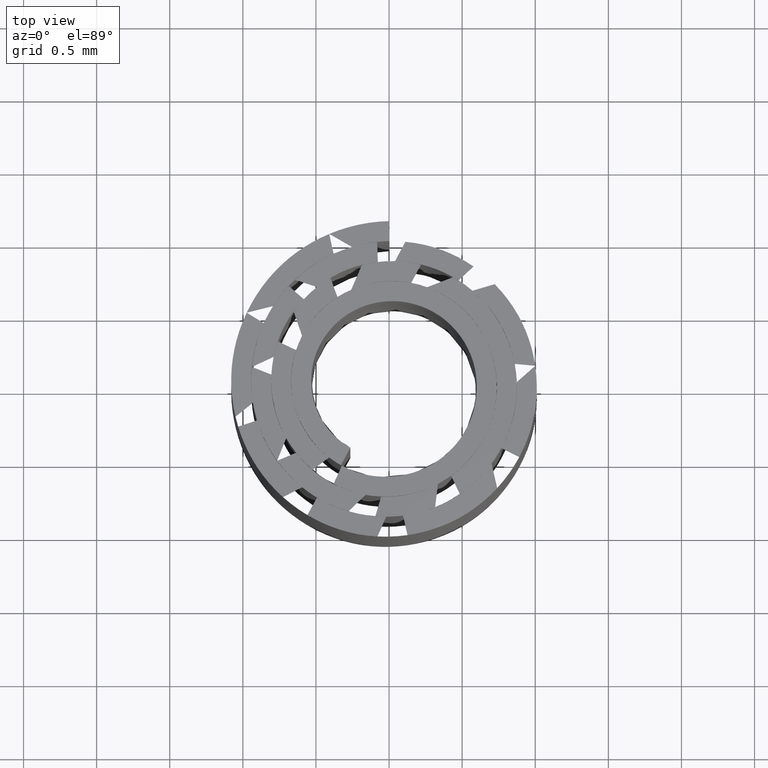
[diagram: clean part render]
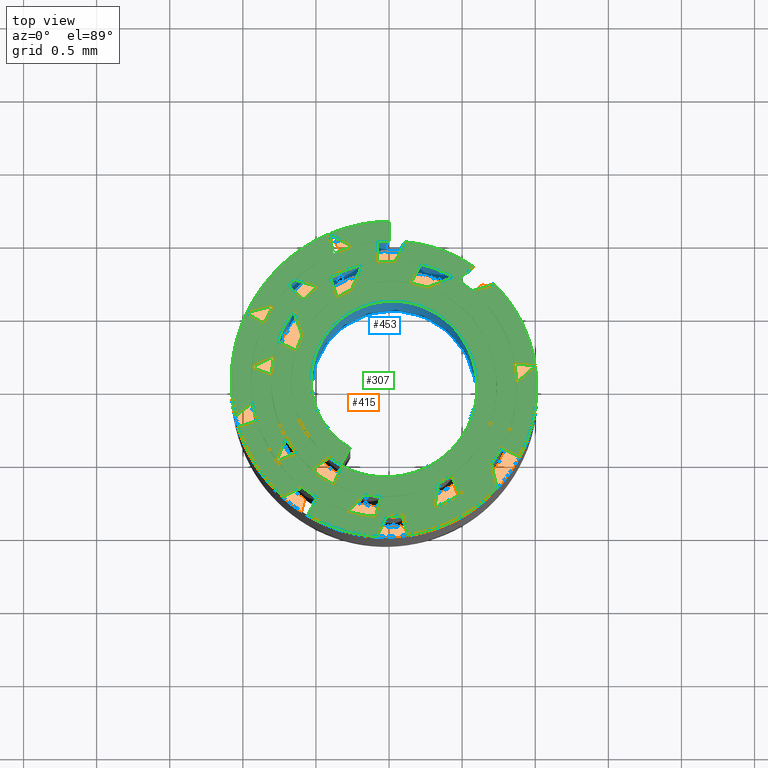
[diagram: same view with three faces highlighted in distinct colors, each labeled with its STEP entity id]
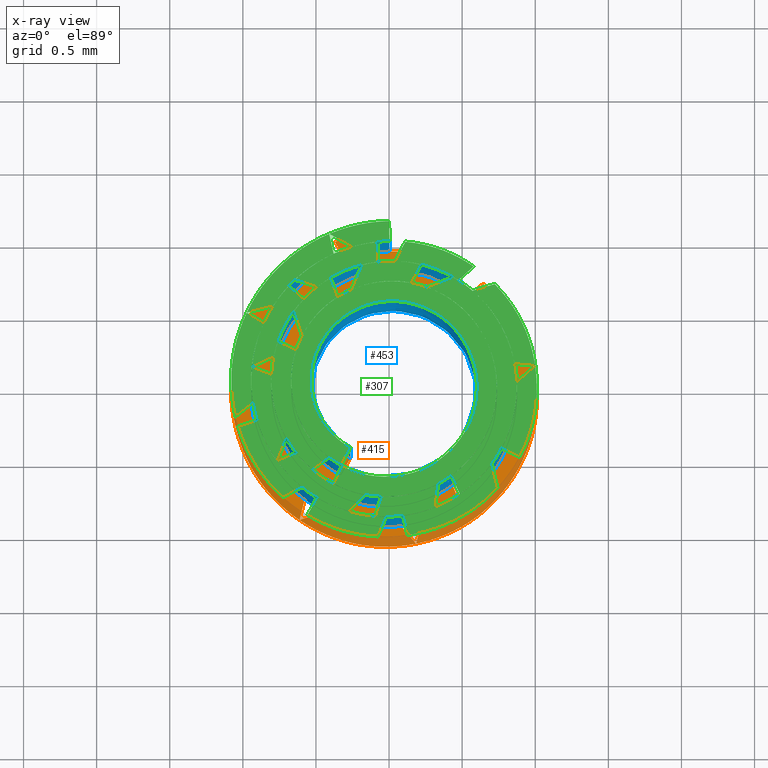
[diagram: x-ray of the same camera — body ghosted, the three highlighted faces saturated]
A machine part, top view with three faces highlighted in distinct colors.
The next image is the same camera in x-ray (body ghosted, the three faces saturated) — at least one of them is partly hidden behind the body in this view.
Their STEP definitions:

[orange] entity #415 — the highlighted planar face has unit normal (-0, 0, -1).
#1 = CARTESIAN_POINT ( 'NONE',  ( 0.7583970038580116800, 0.4609754946678218400, 0.0000000000000000000 ) ) ;
#7 = CARTESIAN_POINT ( 'NONE',  ( -0.6763096916565426400, 0.5049967104586130500, 0.0000000000000000000 ) ) ;
#10 = CARTESIAN_POINT ( 'NONE',  ( -0.7026761214641372700, -0.6447131296553072500, 0.0000000000000000000 ) ) ;
#17 = CARTESIAN_POINT ( 'NONE',  ( -0.7716038316118147800, -0.2815893733691927600, 0.0000000000000000000 ) ) ;
#26 = CARTESIAN_POINT ( 'NONE',  ( 0.3164986882359646100, -1.021436466767802600, 0.0000000000000000000 ) ) ;
#41 = CARTESIAN_POINT ( 'NONE',  ( 0.1035450574063092700, -0.6380646574538141300, -0.0000000000000000000 ) ) ;
#51 = CARTESIAN_POINT ( 'NONE',  ( 0.03687316021515467400, 0.7212485624935433000, -0.0000000000000000000 ) ) ;
#54 = CARTESIAN_POINT ( 'NONE',  ( -0.4308801091655278800, 0.8922816274353114800, -0.0000000000000000000 ) ) ;
#57 = CARTESIAN_POINT ( 'NONE',  ( -0.5043448430240573500, 0.6799910790239479500, 0.0000000000000000000 ) ) ;
#65 = CARTESIAN_POINT ( 'NONE',  ( -0.2234567970211247800, -0.9101199262622796700, 0.0000000000000000000 ) ) ;
#76 = CARTESIAN_POINT ( 'NONE',  ( 0.8560203802046704200, 0.2565611475397826500, 0.0000000000000000000 ) ) ;
#79 = CARTESIAN_POINT ( 'NONE',  ( 0.2476394591388616500, 0.8350266087884887800, 0.0000000000000000000 ) ) ;
#83 = CARTESIAN_POINT ( 'NONE',  ( -0.9701425294174590400, -0.005891124174933593000, 0.0000000000000000000 ) ) ;
#85 = LINE ( 'NONE', #559, #292 ) ;
#89 = CARTESIAN_POINT ( 'NONE',  ( -0.5465353381415623000, -0.5991630616646980200, 0.0000000000000000000 ) ) ;
#96 = CARTESIAN_POINT ( 'NONE',  ( -1.015980769229922100, -0.4278905353636624500, 0.0000000000000000000 ) ) ;
#100 = VERTEX_POINT ( 'NONE', #247 ) ;
#107 = CARTESIAN_POINT ( 'NONE',  ( 1.040978732487718900, -0.05482816004497868100, 0.0000000000000000000 ) ) ;
#112 = CARTESIAN_POINT ( 'NONE',  ( -0.4802400892872921200, 0.2829538511281460800, -0.0000000000000000000 ) ) ;
#113 = CARTESIAN_POINT ( 'NONE',  ( -0.3292590890496430700, -0.5555671395518961800, 0.0000000000000000000 ) ) ;
#119 = DIRECTION ( 'NONE',  ( 0.01957355774662361200, -0.9998084195670385900, 0.0000000000000000000 ) ) ;
#126 = CARTESIAN_POINT ( 'NONE',  ( -0.6653583162490051000, 0.1912225804402379900, -0.0000000000000000000 ) ) ;
#130 = CARTESIAN_POINT ( 'NONE',  ( -0.6257842449147397200, -0.2582919743085542200, -0.0000000000000000000 ) ) ;
#133 = CARTESIAN_POINT ( 'NONE',  ( 0.4868493943613178000, 0.5531990404928831500, -0.0000000000000000000 ) ) ;
#138 = CARTESIAN_POINT ( 'NONE',  ( 0.8736590823780934200, 0.1763616598670839100, 0.0000000000000000000 ) ) ;
#158 = CARTESIAN_POINT ( 'NONE',  ( 0.8877360307185315800, -0.1708958883058093700, 0.0000000000000000000 ) ) ;
#161 = CARTESIAN_POINT ( 'NONE',  ( -0.03965557020235027700, -0.008065601719041757100, 0.0000000000000000000 ) ) ;
#166 = CARTESIAN_POINT ( 'NONE',  ( 0.1515911142503182100, 0.9979109798834902000, 0.0000000000000000000 ) ) ;
#175 = CARTESIAN_POINT ( 'NONE',  ( -0.5411376863129864200, 0.9982318544924089200, 0.0000000000000000000 ) ) ;
#183 = CARTESIAN_POINT ( 'NONE',  ( 0.04893478115581038200, -1.074370110122631700, 0.0000000000000000000 ) ) ;
#184 = CARTESIAN_POINT ( 'NONE',  ( -0.3292590890496430700, -0.5555671395518961800, 0.0000000000000000000 ) ) ;
#188 = CARTESIAN_POINT ( 'NONE',  ( -0.4070570375370784500, 0.3877109547622558700, 0.0000000000000000000 ) ) ;
#193 = CARTESIAN_POINT ( 'NONE',  ( 0.6036040338298983600, 0.4313742471576775300, 0.0000000000000000000 ) ) ;
#196 = CARTESIAN_POINT ( 'NONE',  ( 0.4660939295082303100, -0.4258914369472316400, -0.0000000000000000000 ) ) ;
#198 = CARTESIAN_POINT ( 'NONE',  ( 0.2995291193931143300, 0.5112430986051159600, 0.0000000000000000000 ) ) ;
#204 = CARTESIAN_POINT ( 'NONE',  ( 0.7562369501621192300, -0.03759116794184125900, 0.0000000000000000000 ) ) ;
#205 = ORIENTED_EDGE ( 'NONE', *, *, #933, .T. ) ;
#208 = CARTESIAN_POINT ( 'NONE',  ( -0.01091908959921142700, -0.9308956043515803600, -0.0000000000000000000 ) ) ;
#211 = CARTESIAN_POINT ( 'NONE',  ( -0.1703743066309695900, 0.8399836854419440200, -0.0000000000000000000 ) ) ;
#217 = CARTESIAN_POINT ( 'NONE',  ( 0.3957596547398683500, 0.7772103054122788700, -0.0000000000000000000 ) ) ;
#224 = PLANE ( 'NONE',  #751 ) ;
#225 = CARTESIAN_POINT ( 'NONE',  ( -0.002504007415632577800, -0.7944502543498097600, 0.0000000000000000000 ) ) ;
#227 = CARTESIAN_POINT ( 'NONE',  ( 0.7463509298310556600, 0.1156326890998082600, 0.0000000000000000000 ) ) ;
#230 = CARTESIAN_POINT ( 'NONE',  ( 0.8214754130370506300, -0.3919078862407278100, 0.0000000000000000000 ) ) ;
#234 = CARTESIAN_POINT ( 'NONE',  ( -0.9462143018426538700, 0.2404875558488977200, 0.0000000000000000000 ) ) ;
#247 = CARTESIAN_POINT ( 'NONE',  ( 0.002662003853540723800, 0.9777760549388829800, 0.0000000000000000000 ) ) ;
#254 = CARTESIAN_POINT ( 'NONE',  ( -0.3639301550075702600, -0.3818514652961855200, -0.0000000000000000000 ) ) ;
#264 = CARTESIAN_POINT ( 'NONE',  ( 0.3110105544317272600, -0.7164687674774918900, -0.0000000000000000000 ) ) ;
#270 = CARTESIAN_POINT ( 'NONE',  ( 0.4969608396916904700, 0.3391352500804962800, -0.0000000000000000000 ) ) ;
#276 = CARTESIAN_POINT ( 'NONE',  ( -0.4513191525568734400, -0.4914300314423996100, 0.0000000000000000000 ) ) ;
#280 = CARTESIAN_POINT ( 'NONE',  ( 0.002662003853540723800, 0.9777760549388829800, 0.0000000000000000000 ) ) ;
#283 = CARTESIAN_POINT ( 'NONE',  ( 0.5655994446154070100, 0.6692267637967200800, 0.0000000000000000000 ) ) ;
#290 = CARTESIAN_POINT ( 'NONE',  ( -0.7528169019752754000, -0.5834579483570541100, 0.0000000000000000000 ) ) ;
#292 = VECTOR ( 'NONE', #119, 1000.000000000000100 ) ;
#294 = VERTEX_POINT ( 'NONE', #601 ) ;
#300 = CARTESIAN_POINT ( 'NONE',  ( 0.6444524397320201500, -0.4246592132029523600, 0.0000000000000000000 ) ) ;
#303 = CARTESIAN_POINT ( 'NONE',  ( -0.5170757843521486300, -0.4301428041326466600, 0.0000000000000000000 ) ) ;
#308 = CARTESIAN_POINT ( 'NONE',  ( 0.5529130164652292800, -0.7360235482121024700, 0.0000000000000000000 ) ) ;
#313 = CARTESIAN_POINT ( 'NONE',  ( 0.3517373573016431300, -0.8573565002161743800, 0.0000000000000000000 ) ) ;
#323 = CARTESIAN_POINT ( 'NONE',  ( 1.015144248699343600, 0.2082520348093352400, 0.0000000000000000000 ) ) ;
#326 = CARTESIAN_POINT ( 'NONE',  ( -0.5373431089096661900, -0.07480640947214878300, -0.0000000000000000000 ) ) ;
#329 = CARTESIAN_POINT ( 'NONE',  ( -8.792005455195680700E-017, 1.113750000000000200, 0.0000000000000000000 ) ) ;
#335 = CARTESIAN_POINT ( 'NONE',  ( 0.7953061832709268400, 0.6480272480098289200, 0.0000000000000000000 ) ) ;
#345 = CARTESIAN_POINT ( 'NONE',  ( -0.6501629969373081700, -0.4847990592137034800, -0.0000000000000000000 ) ) ;
#349 = CARTESIAN_POINT ( 'NONE',  ( -0.6074765802666246600, 0.3411355516028977700, 0.0000000000000000000 ) ) ;
#352 = CARTESIAN_POINT ( 'NONE',  ( -0.2701739114645335100, 0.6583627956690887300, 0.0000000000000000000 ) ) ;
#358 = CARTESIAN_POINT ( 'NONE',  ( -0.7502805581728512200, -0.3247491077128839000, 0.0000000000000000000 ) ) ;
#369 = CARTESIAN_POINT ( 'NONE',  ( 0.02736781413553370700, 0.8608990078762405200, 0.0000000000000000000 ) ) ;
#377 = CARTESIAN_POINT ( 'NONE',  ( -0.3701418553615222800, 0.7701081889398881900, 0.0000000000000000000 ) ) ;
#379 = ORIENTED_EDGE ( 'NONE', *, *, #689, .F. ) ;
#381 = CARTESIAN_POINT ( 'NONE',  ( 0.5206215739320180200, -0.5780289262034081800, 0.0000000000000000000 ) ) ;
#385 = CARTESIAN_POINT ( 'NONE',  ( -0.08614373521911816700, -0.9331302622349195700, 0.0000000000000000000 ) ) ;
#388 = CARTESIAN_POINT ( 'NONE',  ( -0.5487157140505032300, 0.8274169232728193500, 0.0000000000000000000 ) ) ;
#394 = VECTOR ( 'NONE', #900, 1000.000000000000200 ) ;
#400 = CARTESIAN_POINT ( 'NONE',  ( -0.2733553764012233700, 1.108398437500000000, 0.0000000000000000000 ) ) ;
#401 = CARTESIAN_POINT ( 'NONE',  ( -0.5447873991663200200, 0.05004074971574799800, 0.0000000000000000000 ) ) ;
#415 = ADVANCED_FACE ( 'NONE', ( #683 ), #224, .T. ) ;
#418 = CARTESIAN_POINT ( 'NONE',  ( 0.1746433185082166600, 0.5603190530023417500, -0.0000000000000000000 ) ) ;
#424 = CARTESIAN_POINT ( 'NONE',  ( -0.2048374455997273900, -0.7691478594145554300, -0.0000000000000000000 ) ) ;
#430 = CARTESIAN_POINT ( 'NONE',  ( -0.8035207075267986100, 0.2159520534524161400, 0.0000000000000000000 ) ) ;
#443 = CARTESIAN_POINT ( 'NONE',  ( 0.3840194915012902800, -0.8380018679702943000, 0.0000000000000000000 ) ) ;
#450 = CARTESIAN_POINT ( 'NONE',  ( -0.1651252646156073900, 0.8445884064315375400, 0.0000000000000000000 ) ) ;
#457 = CARTESIAN_POINT ( 'NONE',  ( -0.3207884171766604600, -0.8870097967582880600, 0.0000000000000000000 ) ) ;
#461 = CARTESIAN_POINT ( 'NONE',  ( 0.4649290388188955200, 0.5740682996103484400, 0.0000000000000000000 ) ) ;
#464 = CARTESIAN_POINT ( 'NONE',  ( -0.6144028719962922900, -0.2884299632449965300, 0.0000000000000000000 ) ) ;
#469 = CARTESIAN_POINT ( 'NONE',  ( 0.7461275854452953400, -0.7514483640741634900, 0.0000000000000000000 ) ) ;
#496 = CARTESIAN_POINT ( 'NONE',  ( -0.3785516382972277100, -0.7078819703765443200, 0.0000000000000000000 ) ) ;
#500 = CARTESIAN_POINT ( 'NONE',  ( 0.3598531505933709200, -0.5267084757147881800, 0.0000000000000000000 ) ) ;
#521 = CARTESIAN_POINT ( 'NONE',  ( -0.3487670982820950700, -0.5449482607665888700, 0.0000000000000000000 ) ) ;
#528 = CARTESIAN_POINT ( 'NONE',  ( -0.8479840170974072300, -0.4495258677046951600, 0.0000000000000000000 ) ) ;
#535 = CARTESIAN_POINT ( 'NONE',  ( 0.4534072424004326200, 0.7508287515906255600, 0.0000000000000000000 ) ) ;
#538 = ORIENTED_EDGE ( 'NONE', *, *, #914, .F. ) ;
#543 = CARTESIAN_POINT ( 'NONE',  ( -0.9331965472929604200, 0.6284452996950649100, 0.0000000000000000000 ) ) ;
#546 = CARTESIAN_POINT ( 'NONE',  ( -0.6957925316497993700, -0.8416470683276798800, 0.0000000000000000000 ) ) ;
#559 = CARTESIAN_POINT ( 'NONE',  ( -8.792005455195680700E-017, 1.113750000000000200, 0.0000000000000000000 ) ) ;
#563 = LINE ( 'NONE', #184, #394 ) ;
#566 = CARTESIAN_POINT ( 'NONE',  ( 0.6149130298445264500, -0.04361499196936627400, -0.0000000000000000000 ) ) ;
#570 = CARTESIAN_POINT ( 'NONE',  ( 0.2010830859525871200, 0.6983408836809584800, 0.0000000000000000000 ) ) ;
#574 = CARTESIAN_POINT ( 'NONE',  ( -0.2145906509997166400, 0.9735228327193515800, -0.0000000000000000000 ) ) ;
#580 = CARTESIAN_POINT ( 'NONE',  ( -0.5959689265971325200, -0.7342579638883213200, -0.0000000000000000000 ) ) ;
#595 = CARTESIAN_POINT ( 'NONE',  ( 0.7574919616994796300, -0.07696451459410308400, 0.0000000000000000000 ) ) ;
#601 = CARTESIAN_POINT ( 'NONE',  ( -0.3292590890496430700, -0.5555671395518961800, 0.0000000000000000000 ) ) ;
#602 = CARTESIAN_POINT ( 'NONE',  ( -0.3677558955402303600, -0.5332894459163755000, 0.0000000000000000000 ) ) ;
#607 = CARTESIAN_POINT ( 'NONE',  ( -0.1043505306542801300, 0.9977809587104833300, 0.0000000000000000000 ) ) ;
#632 = CARTESIAN_POINT ( 'NONE',  ( 0.5950162367494293800, -0.1842639357315184700, 0.0000000000000000000 ) ) ;
#636 = CARTESIAN_POINT ( 'NONE',  ( -0.08058089658150031900, 0.5716607715967347800, 0.0000000000000000000 ) ) ;
#644 = CARTESIAN_POINT ( 'NONE',  ( 0.7396194326502599800, 0.1336476855588973300, -0.0000000000000000000 ) ) ;
#653 = CARTESIAN_POINT ( 'NONE',  ( 0.8078425937591571200, -0.4112342656451591400, 0.0000000000000000000 ) ) ;
#664 = CARTESIAN_POINT ( 'NONE',  ( -0.3641254467813354000, 0.6116123470259144900, 0.0000000000000000000 ) ) ;
#669 = CARTESIAN_POINT ( 'NONE',  ( -0.04014132327632603100, 0.7210765924086439700, 0.0000000000000000000 ) ) ;
#674 = CARTESIAN_POINT ( 'NONE',  ( -0.6885090739393742200, 0.02926466359169566400, 0.0000000000000000000 ) ) ;
#680 = CARTESIAN_POINT ( 'NONE',  ( 0.9062453287998693000, -0.5358558011870280200, 0.0000000000000000000 ) ) ;
#683 = FACE_OUTER_BOUND ( 'NONE', #685, .T. ) ;
#685 = EDGE_LOOP ( 'NONE', ( #906, #205, #379, #538 ) ) ;
#689 = EDGE_CURVE ( 'NONE', #782, #100, #703, .T. ) ;
#694 = CARTESIAN_POINT ( 'NONE',  ( -0.2642383524762119700, -0.4361171340456238600, 1.999993061106096600E-009 ) ) ;
#699 = CARTESIAN_POINT ( 'NONE',  ( -0.2642383524762119700, -0.4361171340456238600, 1.999993061106096600E-009 ) ) ;
#703 = B_SPLINE_CURVE_WITH_KNOTS ( 'NONE', 3,
 ( #694, #254, #768, #326, #401, #112, #188, #774, #636, #418, #198, #270, #704, #566, #632, #196, #500, #41, #709, #927, #276, #130, #785, #126, #349, #861, #352, #51, #570, #133, #193, #644, #204, #716, #855, #264, #858, #424, #496, #345, #358, #864, #430, #936, #57, #211, #369, #217, #283, #878, #138, #727, #653, #729, #443, #208, #65, #580, #290, #810, #869, #801, #950, #54, #574, #280 ),
 .UNSPECIFIED., .F., .F.,
 ( 4, 2, 2, 2, 2, 2, 2, 2, 2, 2, 2, 2, 2, 2, 2, 2, 2, 2, 2, 2, 2, 2, 2, 2, 2, 2, 2, 2, 2, 2, 2, 2, 4 ),
 ( 0.08937025176922647200, 0.1178274314014381400, 0.1462846110336498100, 0.1747417906658615100, 0.2031989702980731800, 0.2316561499302848500, 0.2601133295624965500, 0.2885705091947082200, 0.3170276888269199000, 0.3454848684591315700, 0.3739420480913432400, 0.4023992277235548500, 0.4308564073557664700, 0.4593135869879782000, 0.4877707666201898700, 0.5162279462524015400, 0.5446851258846132600, 0.5731423055168248800, 0.6015994851490364900, 0.6300566647812482200, 0.6585138444134599500, 0.6869710240456716700, 0.7154282036778831800, 0.7438853833100949100, 0.7723425629423066300, 0.8007997425745183600, 0.8292569222067300800, 0.8577141018389415900, 0.8861712814711533200, 0.9146284611033650400, 0.9430856407355767700, 0.9715428203677882700, 1.000000000000000000 ),
 .UNSPECIFIED. ) ;
#704 = CARTESIAN_POINT ( 'NONE',  ( 0.5665174280664842000, 0.2200210100986972300, 0.0000000000000000000 ) ) ;
#709 = CARTESIAN_POINT ( 'NONE',  ( -0.04697347279112578500, -0.6509735102514175900, 0.0000000000000000000 ) ) ;
#716 = CARTESIAN_POINT ( 'NONE',  ( 0.6756423183899472600, -0.3615359674359638900, -0.0000000000000000000 ) ) ;
#727 = CARTESIAN_POINT ( 'NONE',  ( 0.8754702341596958300, -0.2159216843870223100, -0.0000000000000000000 ) ) ;
#729 = CARTESIAN_POINT ( 'NONE',  ( 0.5607439209446599700, -0.7247190216429617600, -0.0000000000000000000 ) ) ;
#738 = CARTESIAN_POINT ( 'NONE',  ( 0.1442367610942328100, 0.7139045705999829100, 0.0000000000000000000 ) ) ;
#745 = DIRECTION ( 'NONE',  ( -0.0000000000000000000, 0.0000000000000000000, -1.000000000000000000 ) ) ;
#747 = CARTESIAN_POINT ( 'NONE',  ( -0.5022434138371598700, 0.4956916835127473900, 0.0000000000000000000 ) ) ;
#751 = AXIS2_PLACEMENT_3D ( 'NONE', #161, #745, #889 ) ;
#752 = CARTESIAN_POINT ( 'NONE',  ( -0.6647365660968040900, 0.2037691985282647500, 0.0000000000000000000 ) ) ;
#755 = CARTESIAN_POINT ( 'NONE',  ( 0.6025344246541302100, 0.8227091238715674700, 0.0000000000000000000 ) ) ;
#764 = CARTESIAN_POINT ( 'NONE',  ( -1.097127492715755300, -0.1587014415089026400, 0.0000000000000000000 ) ) ;
#768 = CARTESIAN_POINT ( 'NONE',  ( -0.4457528820886095800, -0.2906029118918482300, 0.0000000000000000000 ) ) ;
#772 = EDGE_CURVE ( 'NONE', #294, #925, #807, .T. ) ;
#774 = CARTESIAN_POINT ( 'NONE',  ( -0.2058117838427722100, 0.5338761866542828200, -0.0000000000000000000 ) ) ;
#781 = CARTESIAN_POINT ( 'NONE',  ( -8.792005455195680700E-017, 1.113750000000000200, 0.0000000000000000000 ) ) ;
#782 = VERTEX_POINT ( 'NONE', #699 ) ;
#785 = CARTESIAN_POINT ( 'NONE',  ( -0.6734084884026952900, -0.1073311473291077400, 0.0000000000000000000 ) ) ;
#801 = CARTESIAN_POINT ( 'NONE',  ( -0.8780856309246933800, 0.4251752516853059500, -0.0000000000000000000 ) ) ;
#807 = B_SPLINE_CURVE_WITH_KNOTS ( 'NONE', 3,
 ( #113, #521, #602, #303, #464, #674, #752, #747, #664, #669, #738, #461, #825, #227, #595, #300, #381, #821, #225, #890, #89, #17, #894, #817, #7, #377, #450, #79, #535, #1, #76, #158, #230, #308, #313, #385, #457, #10, #528, #83, #234, #829, #388, #607, #166, #755, #335, #323, #107, #680, #469, #26, #183, #903, #546, #96, #764, #839, #543, #175, #400, #329 ),
 .UNSPECIFIED., .F., .F.,
 ( 4, 2, 2, 2, 2, 2, 2, 2, 2, 2, 2, 2, 2, 2, 2, 2, 2, 2, 2, 2, 2, 2, 2, 2, 2, 2, 2, 2, 2, 2, 4 ),
 ( 0.08937025176922704100, 0.09375000000000004200, 0.1250000000000000600, 0.1562500000000000600, 0.1875000000000001100, 0.2187500000000000600, 0.2500000000000000600, 0.2812500000000000600, 0.3125000000000000000, 0.3437500000000000000, 0.3749999999999999400, 0.4062499999999998300, 0.4374999999999998300, 0.4687499999999998900, 0.4999999999999998900, 0.5312499999999998900, 0.5624999999999998900, 0.5937499999999998900, 0.6249999999999998900, 0.6562500000000000000, 0.6875000000000000000, 0.7187500000000000000, 0.7500000000000000000, 0.7812500000000000000, 0.8125000000000000000, 0.8437500000000000000, 0.8750000000000000000, 0.9062500000000001100, 0.9375000000000001100, 0.9687500000000001100, 1.000000000000000000 ),
 .UNSPECIFIED. ) ;
#810 = CARTESIAN_POINT ( 'NONE',  ( -0.9376056933547526300, -0.2086920119721534200, -0.0000000000000000000 ) ) ;
#817 = CARTESIAN_POINT ( 'NONE',  ( -0.7761273336957539300, 0.3157869756678219900, 0.0000000000000000000 ) ) ;
#821 = CARTESIAN_POINT ( 'NONE',  ( 0.1964170562244020600, -0.7634559969889722600, 0.0000000000000000000 ) ) ;
#825 = CARTESIAN_POINT ( 'NONE',  ( 0.5996260640963244600, 0.4418892364270827800, 0.0000000000000000000 ) ) ;
#829 = CARTESIAN_POINT ( 'NONE',  ( -0.7350859085189543900, 0.6581861294657855900, 0.0000000000000000000 ) ) ;
#839 = CARTESIAN_POINT ( 'NONE',  ( -1.055736966780583600, 0.3707400833624573400, 0.0000000000000000000 ) ) ;
#855 = CARTESIAN_POINT ( 'NONE',  ( 0.5806785878358391400, -0.5094101887602291400, 0.0000000000000000000 ) ) ;
#858 = CARTESIAN_POINT ( 'NONE',  ( 0.1409740427458694400, -0.7749595461682901000, 0.0000000000000000000 ) ) ;
#861 = CARTESIAN_POINT ( 'NONE',  ( -0.4108770394996971700, 0.5757653725372189300, -0.0000000000000000000 ) ) ;
#864 = CARTESIAN_POINT ( 'NONE',  ( -0.8258933569462527700, 0.02409214322981010800, -0.0000000000000000000 ) ) ;
#869 = CARTESIAN_POINT ( 'NONE',  ( -0.9675198395334846400, 0.01122465648184114500, 0.0000000000000000000 ) ) ;
#878 = CARTESIAN_POINT ( 'NONE',  ( 0.8066761555110698600, 0.3688747869372324700, -0.0000000000000000000 ) ) ;
#889 = DIRECTION ( 'NONE',  ( -1.000000000000000000, 0.0000000000000000000, 0.0000000000000000000 ) ) ;
#890 = CARTESIAN_POINT ( 'NONE',  ( -0.3748935673231771300, -0.7122053194596226200, 0.0000000000000000000 ) ) ;
#894 = CARTESIAN_POINT ( 'NONE',  ( -0.8237883917574385700, -0.07846189655459263900, 0.0000000000000000000 ) ) ;
#900 = DIRECTION ( 'NONE',  ( 0.4780936512752284600, 0.8783088640167080500, -0.0000000000000000000 ) ) ;
#903 = CARTESIAN_POINT ( 'NONE',  ( -0.4584415602127839800, -0.9843594925237751900, 0.0000000000000000000 ) ) ;
#906 = ORIENTED_EDGE ( 'NONE', *, *, #772, .T. ) ;
#914 = EDGE_CURVE ( 'NONE', #294, #782, #563, .T. ) ;
#925 = VERTEX_POINT ( 'NONE', #781 ) ;
#927 = CARTESIAN_POINT ( 'NONE',  ( -0.3222852873269279600, -0.5777917772535018400, -0.0000000000000000000 ) ) ;
#933 = EDGE_CURVE ( 'NONE', #925, #100, #85, .T. ) ;
#936 = CARTESIAN_POINT ( 'NONE',  ( -0.6440381022619821000, 0.5419032814458185600, -0.0000000000000000000 ) ) ;
#950 = CARTESIAN_POINT ( 'NONE',  ( -0.7622425609260279300, 0.6198184951530134600, 0.0000000000000000000 ) ) ;

[blue] entity #453 — the highlighted face is a freeform B-spline surface patch.
#2 = CARTESIAN_POINT ( 'NONE',  ( -0.2145906509997174100, 0.9735228327193513600, 4.000000000000001800 ) ) ;
#4 = CARTESIAN_POINT ( 'NONE',  ( -0.6440381022619822100, 0.5419032814458181200, 4.000000000000000000 ) ) ;
#5 = EDGE_CURVE ( 'NONE', #59, #42, #31, .T. ) ;
#6 = CARTESIAN_POINT ( 'NONE',  ( -0.2642383524762119700, -0.4361171340456238600, 1.333333333333333300 ) ) ;
#8 = CARTESIAN_POINT ( 'NONE',  ( 0.5950162367494306000, -0.1842639357315140900, 3.999999999999999100 ) ) ;
#9 = CARTESIAN_POINT ( 'NONE',  ( 0.8754702341596957100, -0.2159216843870219400, 1.333333333333333300 ) ) ;
#11 = CARTESIAN_POINT ( 'NONE',  ( 0.8078425937591570100, -0.4112342656451595200, 1.333333333333333300 ) ) ;
#12 = CARTESIAN_POINT ( 'NONE',  ( -0.3064344106899252700, 0.4607935707082693200, 4.000000000000000000 ) ) ;
#14 = CARTESIAN_POINT ( 'NONE',  ( -0.7502805581728511100, -0.3247491077128843400, 4.000000000000000000 ) ) ;
#15 = CARTESIAN_POINT ( 'NONE',  ( 0.8066761555110701900, 0.3688747869372328600, 1.333333333333333300 ) ) ;
#18 = CARTESIAN_POINT ( 'NONE',  ( -0.08058089658150396900, 0.5716607715967342300, 3.999999999999999100 ) ) ;
#20 = CARTESIAN_POINT ( 'NONE',  ( -0.4097128618091286400, -0.8221889450753004900, 0.0000000000000000000 ) ) ;
#21 = CARTESIAN_POINT ( 'NONE',  ( 0.3982449795424030100, 0.4251891743428056200, 1.333333333333333300 ) ) ;
#22 = CARTESIAN_POINT ( 'NONE',  ( 0.3840194915012899400, -0.8380018679702943000, 2.666666666666666500 ) ) ;
#23 = CARTESIAN_POINT ( 'NONE',  ( 0.5665174280664847500, 0.2200210100986966200, 1.333333333333333300 ) ) ;
#24 = CARTESIAN_POINT ( 'NONE',  ( -0.9376056933547523000, -0.2086920119721537800, 0.0000000000000000000 ) ) ;
#25 = CARTESIAN_POINT ( 'NONE',  ( -0.5125137442268060700, 0.1664973004219469400, 2.666666666666666500 ) ) ;
#27 = CARTESIAN_POINT ( 'NONE',  ( -0.4457528820886061900, -0.2906029118918529400, 4.000000000000000900 ) ) ;
#28 = CARTESIAN_POINT ( 'NONE',  ( -0.2234567970211243900, -0.9101199262622798900, 1.333333333333333300 ) ) ;
#30 = CARTESIAN_POINT ( 'NONE',  ( -0.6693834023258499200, 0.04194571655556610100, 0.0000000000000000000 ) ) ;
#31 = B_SPLINE_CURVE_WITH_KNOTS ( 'NONE', 3,
 ( #73, #2, #808, #592, #441, #287, #804, #583, #318, #830, #897, #167, #614, #826, #170, #458, #603, #389, #462, #541, #396, #536, #240, #84, #231, #14, #608, #467, #382, #97, #235, #532, #393, #739, #748, #529, #94, #90, #309, #670, #304, #243, #599, #163, #756, #901, #822, #678, #891, #743, #454, #8, #314, #525, #80, #159, #465, #18, #258, #179, #759, #775, #250, #27, #330, #480 ),
 .UNSPECIFIED., .F., .F.,
 ( 4, 2, 2, 2, 2, 2, 2, 2, 2, 2, 2, 2, 2, 2, 2, 2, 2, 2, 2, 2, 2, 2, 2, 2, 2, 2, 2, 2, 2, 2, 2, 2, 4 ),
 ( -1.229041630092437600E-016, 0.02845717963221153200, 0.05691435926442318200, 0.08537153889663484700, 0.1138287185288465500, 0.1422858981610582200, 0.1707430777932698600, 0.1992002574254815000, 0.2276574370576931700, 0.2561146166899048700, 0.2845717963221165400, 0.3130289759543281600, 0.3414861555865398300, 0.3699433352187515600, 0.3984005148509632300, 0.4268576944831749000, 0.4553148741153865700, 0.4837720537475982400, 0.5122292333798098600, 0.5406864130120214700, 0.5691435926442332000, 0.5976007722764448100, 0.6260579519086564300, 0.6545151315408681600, 0.6829723111730797700, 0.7114294908052915000, 0.7398866704375033400, 0.7683438500697150600, 0.7968010297019267900, 0.8252582093341385100, 0.8537153889663503500, 0.8821725685985619700, 0.9106297482307738100 ),
 .UNSPECIFIED. ) ;
#32 = CARTESIAN_POINT ( 'NONE',  ( -0.2145906509997176600, 0.9735228327193511400, 4.000000000000000000 ) ) ;
#34 = CARTESIAN_POINT ( 'NONE',  ( -0.5959689265971328500, -0.7342579638883211000, 2.666666666666666500 ) ) ;
#35 = CARTESIAN_POINT ( 'NONE',  ( -0.5091768098831606100, 0.4584504620700588500, 0.0000000000000000000 ) ) ;
#37 = CARTESIAN_POINT ( 'NONE',  ( 0.5305550831288293700, -0.3050776863393759300, 1.333333333333333300 ) ) ;
#40 = CARTESIAN_POINT ( 'NONE',  ( -0.1846293800590276300, -0.6143826437524597700, 0.0000000000000000000 ) ) ;
#41 = CARTESIAN_POINT ( 'NONE',  ( 0.1035450574063092700, -0.6380646574538141300, -0.0000000000000000000 ) ) ;
#42 = VERTEX_POINT ( 'NONE', #336 ) ;
#44 = CARTESIAN_POINT ( 'NONE',  ( -0.7622425609260276000, 0.6198184951530139000, 2.666666666666666500 ) ) ;
#45 = CARTESIAN_POINT ( 'NONE',  ( -0.6653583162490047700, 0.1912225804402393200, 4.000000000000000000 ) ) ;
#48 = CARTESIAN_POINT ( 'NONE',  ( -0.1166503756246884500, 0.6898056790813162900, 0.0000000000000000000 ) ) ;
#50 = CARTESIAN_POINT ( 'NONE',  ( -0.4108770394996966700, 0.5757653725372193800, 4.000000000000000000 ) ) ;
#51 = CARTESIAN_POINT ( 'NONE',  ( 0.03687316021515467400, 0.7212485624935433000, -0.0000000000000000000 ) ) ;
#53 = CARTESIAN_POINT ( 'NONE',  ( 0.4868493943613185800, 0.5531990404928827100, 4.000000000000000000 ) ) ;
#54 = CARTESIAN_POINT ( 'NONE',  ( -0.4308801091655278800, 0.8922816274353114800, -0.0000000000000000000 ) ) ;
#56 = CARTESIAN_POINT ( 'NONE',  ( 0.4868493943613185800, 0.5531990404928827100, 2.666666666666666500 ) ) ;
#57 = CARTESIAN_POINT ( 'NONE',  ( -0.5043448430240573500, 0.6799910790239479500, 0.0000000000000000000 ) ) ;
#58 = CARTESIAN_POINT ( 'NONE',  ( -0.5143573176172678800, -0.5963405147951238400, 2.666666666666666500 ) ) ;
#59 = VERTEX_POINT ( 'NONE', #556 ) ;
#62 = CARTESIAN_POINT ( 'NONE',  ( 0.4458445711337831700, -0.6129394781188605100, 4.000000000000000000 ) ) ;
#64 = CARTESIAN_POINT ( 'NONE',  ( -0.7880869575595519400, -0.1503284822415368600, 2.666666666666666500 ) ) ;
#65 = CARTESIAN_POINT ( 'NONE',  ( -0.2234567970211247800, -0.9101199262622796700, 0.0000000000000000000 ) ) ;
#67 = CARTESIAN_POINT ( 'NONE',  ( -0.2642383524762119700, -0.4361171340456238600, 0.0000000000000000000 ) ) ;
#69 = CARTESIAN_POINT ( 'NONE',  ( 0.3110105544317275400, -0.7164687674774916600, 0.0000000000000000000 ) ) ;
#71 = CARTESIAN_POINT ( 'NONE',  ( -0.5447873991663200200, 0.05004074971574791500, 4.000000000000000000 ) ) ;
#73 = CARTESIAN_POINT ( 'NONE',  ( 0.002662003853540723800, 0.9777760549388829800, 4.000000000000000000 ) ) ;
#74 = CARTESIAN_POINT ( 'NONE',  ( -0.3373595748275134400, 0.7599873822329459300, 0.0000000000000000000 ) ) ;
#75 = CARTESIAN_POINT ( 'NONE',  ( -0.2642383524762093600, -0.4361171340456250800, 2.666666666666668700 ) ) ;
#77 = CARTESIAN_POINT ( 'NONE',  ( 0.3957596547398688500, 0.7772103054122788700, 4.000000000000000000 ) ) ;
#78 = CARTESIAN_POINT ( 'NONE',  ( -0.3639301550075703700, -0.3818514652961854700, 0.0000000000000000000 ) ) ;
#80 = CARTESIAN_POINT ( 'NONE',  ( 0.4969608396916889700, 0.3391352500804986100, 4.000000000000000000 ) ) ;
#81 = CARTESIAN_POINT ( 'NONE',  ( -0.1703743066309698900, 0.8399836854419439100, 2.666666666666666500 ) ) ;
#82 = CARTESIAN_POINT ( 'NONE',  ( 0.002662003853540723800, 0.9777760549388829800, 1.333333333333333300 ) ) ;
#84 = CARTESIAN_POINT ( 'NONE',  ( -0.8035207075267997200, 0.2159520534524121700, 4.000000000000000000 ) ) ;
#86 = CARTESIAN_POINT ( 'NONE',  ( 0.8078425937591570100, -0.4112342656451595200, 2.666666666666666500 ) ) ;
#88 = CARTESIAN_POINT ( 'NONE',  ( 0.6149130298445263400, -0.04361499196936700900, 0.0000000000000000000 ) ) ;
#90 = CARTESIAN_POINT ( 'NONE',  ( 0.2010830859525842600, 0.6983408836809595900, 4.000000000000000000 ) ) ;
#91 = CARTESIAN_POINT ( 'NONE',  ( 0.8066761555110701900, 0.3688747869372328600, 0.0000000000000000000 ) ) ;
#92 = CARTESIAN_POINT ( 'NONE',  ( 0.2995291193931147200, 0.5112430986051157400, 1.333333333333333300 ) ) ;
#94 = CARTESIAN_POINT ( 'NONE',  ( 0.4868493943613151400, 0.5531990404928853700, 4.000000000000000900 ) ) ;
#95 = CARTESIAN_POINT ( 'NONE',  ( 0.04703121096335861200, 0.5659899122995383200, 4.000000000000000000 ) ) ;
#97 = CARTESIAN_POINT ( 'NONE',  ( 0.1409740427458734700, -0.7749595461682892200, 3.999999999999999100 ) ) ;
#99 = CARTESIAN_POINT ( 'NONE',  ( 0.5907152289555055400, 0.08820300906466480000, 4.000000000000000000 ) ) ;
#100 = VERTEX_POINT ( 'NONE', #247 ) ;
#101 = CARTESIAN_POINT ( 'NONE',  ( -0.9675198395334843000, 0.01122465648184151600, 1.333333333333333300 ) ) ;
#102 = CARTESIAN_POINT ( 'NONE',  ( -0.2058117838427720700, 0.5338761866542829400, 1.333333333333333300 ) ) ;
#105 = CARTESIAN_POINT ( 'NONE',  ( 0.3840194915012899400, -0.8380018679702943000, 4.000000000000000000 ) ) ;
#106 = CARTESIAN_POINT ( 'NONE',  ( -0.6734084884026950700, -0.1073311473291071200, 1.333333333333333300 ) ) ;
#110 = B_SPLINE_SURFACE_WITH_KNOTS ( 'NONE', 3, 3, ( 
 ( #67, #6, #516, #302 ),
 ( #78, #380, #229, #597 ),
 ( #659, #306, #222, #731 ),
 ( #295, #150, #734, #813 ),
 ( #157, #374, #824, #384 ),
 ( #446, #956, #893, #71 ),
 ( #456, #460, #25, #169 ),
 ( #836, #676, #841, #613 ),
 ( #616, #539, #758, #246 ),
 ( #761, #238, #242, #12 ),
 ( #750, #102, #328, #403 ),
 ( #174, #754, #909, #545 ),
 ( #321, #470, #833, #95 ),
 ( #618, #902, #907, #395 ),
 ( #466, #92, #531, #534 ),
 ( #610, #21, #173, #682 ),
 ( #178, #244, #838, #397 ),
 ( #468, #23, #690, #391 ),
 ( #686, #542, #325, #99 ),
 ( #88, #399, #605, #165 ),
 ( #316, #899, #846, #192 ),
 ( #263, #37, #186, #339 ),
 ( #707, #911, #696, #111 ),
 ( #767, #555, #628, #621 ),
 ( #181, #409, #266, #773 ),
 ( #624, #348, #919, #475 ),
 ( #257, #482, #411, #702 ),
 ( #40, #548, #779, #922 ),
 ( #918, #693, #477, #191 ),
 ( #562, #778, #784, #558 ),
 ( #698, #854, #634, #261 ),
 ( #344, #552, #342, #849 ),
 ( #472, #106, #487, #412 ),
 ( #30, #334, #852, #117 ),
 ( #631, #915, #417, #45 ),
 ( #121, #195, #253, #843 ),
 ( #35, #714, #268, #934 ),
 ( #423, #798, #568, #50 ),
 ( #351, #939, #860, #863 ),
 ( #48, #641, #129, #282 ),
 ( #279, #494, #273, #569 ),
 ( #715, #724, #207, #429 ),
 ( #928, #132, #857, #356 ),
 ( #210, #502, #56, #53 ),
 ( #426, #200, #720, #643 ),
 ( #788, #565, #499, #203 ),
 ( #275, #794, #792, #573 ),
 ( #576, #364, #421, #135 ),
 ( #646, #361, #867, #432 ),
 ( #137, #123, #649, #926 ),
 ( #489, #638, #712, #949 ),
 ( #445, #941, #515, #62 ),
 ( #69, #805, #289, #293 ),
 ( #656, #587, #880, #149 ),
 ( #219, #140, #442, #506 ),
 ( #367, #874, #581, #657 ),
 ( #142, #812, #509, #144 ),
 ( #955, #815, #58, #662 ),
 ( #223, #733, #285, #221 ),
 ( #373, #510, #437, #883 ),
 ( #952, #877, #64, #298 ),
 ( #871, #726, #434, #584 ),
 ( #578, #652, #809, #214 ),
 ( #371, #366, #944, #512 ),
 ( #155, #958, #596, #4 ),
 ( #533, #898, #164, #740 ),
 ( #74, #671, #679, #675 ),
 ( #668, #378, #81, #226 ),
 ( #522, #168, #827, #463 ),
 ( #319, #383, #451, #236 ),
 ( #888, #301, #519, #77 ),
 ( #228, #315, #530, #241 ),
 ( #753, #818, #593, #376 ),
 ( #91, #15, #609, #886 ),
 ( #390, #459, #152, #305 ),
 ( #823, #600, #892, #449 ),
 ( #455, #9, #526, #386 ),
 ( #604, #11, #86, #665 ),
 ( #736, #160, #232, #744 ),
 ( #311, #895, #749, #832 ),
 ( #684, #837, #22, #105 ),
 ( #615, #910, #835, #408 ),
 ( #185, #760, #612, #252 ),
 ( #620, #28, #908, #177 ),
 ( #20, #180, #171, #324 ),
 ( #537, #681, #34, #695 ),
 ( #766, #757, #547, #840 ),
 ( #913, #332, #688, #551 ),
 ( #24, #905, #623, #398 ),
 ( #544, #101, #617, #248 ),
 ( #763, #692, #327, #471 ),
 ( #256, #771, #347, #486 ),
 ( #921, #777, #44, #706 ),
 ( #116, #845, #627, #340 ),
 ( #553, #176, #691, #405 ),
 ( #687, #850, #762, #32 ),
 ( #249, #479, #697, #413 ) ),
 .UNSPECIFIED., .F., .F., .F.,
 ( 4, 3, 3, 3, 3, 3, 3, 3, 3, 3, 3, 3, 3, 3, 3, 3, 3, 3, 3, 3, 3, 3, 3, 3, 3, 3, 3, 3, 3, 3, 3, 3, 4 ),
 ( 4, 4 ),
 ( 0.08937025176922647200, 0.1178274314014381400, 0.1462846110336498100, 0.1747417906658614900, 0.2031989702980731800, 0.2316561499302848800, 0.2601133295624965500, 0.2885705091947082200, 0.3170276888269199000, 0.3454848684591315700, 0.3739420480913432400, 0.4023992277235549100, 0.4308564073557665800, 0.4593135869879782500, 0.4877707666201899200, 0.5162279462524015400, 0.5446851258846132600, 0.5731423055168249900, 0.6015994851490366100, 0.6300566647812482200, 0.6585138444134599500, 0.6869710240456716700, 0.7154282036778832900, 0.7438853833100949100, 0.7723425629423066300, 0.8007997425745183600, 0.8292569222067299700, 0.8577141018389415900, 0.8861712814711533200, 0.9146284611033650400, 0.9430856407355766600, 0.9715428203677882700, 1.000000000000000000 ),
 ( 0.0000000000000000000, 1.000000000000000000 ),
 .UNSPECIFIED. ) ;
#111 = CARTESIAN_POINT ( 'NONE',  ( 0.4660939295082299800, -0.4258914369472323000, 4.000000000000000000 ) ) ;
#112 = CARTESIAN_POINT ( 'NONE',  ( -0.4802400892872921200, 0.2829538511281460800, -0.0000000000000000000 ) ) ;
#116 = CARTESIAN_POINT ( 'NONE',  ( -0.5965613350457774600, 0.7560500612941625200, 0.0000000000000000000 ) ) ;
#117 = CARTESIAN_POINT ( 'NONE',  ( -0.6693834023258499200, 0.04194571655556610100, 4.000000000000000000 ) ) ;
#121 = CARTESIAN_POINT ( 'NONE',  ( -0.6074765802666244300, 0.3411355516028982700, 0.0000000000000000000 ) ) ;
#123 = CARTESIAN_POINT ( 'NONE',  ( 0.6756423183899471500, -0.3615359674359641100, 1.333333333333333300 ) ) ;
#124 = EDGE_LOOP ( 'NONE', ( #416, #493, #780, #322 ) ) ;
#126 = CARTESIAN_POINT ( 'NONE',  ( -0.6653583162490051000, 0.1912225804402379900, -0.0000000000000000000 ) ) ;
#129 = CARTESIAN_POINT ( 'NONE',  ( -0.1166503756246884500, 0.6898056790813162900, 2.666666666666666500 ) ) ;
#130 = CARTESIAN_POINT ( 'NONE',  ( -0.6257842449147397200, -0.2582919743085542200, -0.0000000000000000000 ) ) ;
#132 = CARTESIAN_POINT ( 'NONE',  ( 0.3439662401569533700, 0.6257699620869204800, 1.333333333333333300 ) ) ;
#133 = CARTESIAN_POINT ( 'NONE',  ( 0.4868493943613178000, 0.5531990404928831500, -0.0000000000000000000 ) ) ;
#135 = CARTESIAN_POINT ( 'NONE',  ( 0.7562369501621192300, -0.03759116794184091900, 4.000000000000000000 ) ) ;
#137 = CARTESIAN_POINT ( 'NONE',  ( 0.6756423183899471500, -0.3615359674359641100, 0.0000000000000000000 ) ) ;
#138 = CARTESIAN_POINT ( 'NONE',  ( 0.8736590823780934200, 0.1763616598670839100, 0.0000000000000000000 ) ) ;
#140 = CARTESIAN_POINT ( 'NONE',  ( -0.03193170142692898500, -0.7720537027914227100, 1.333333333333333300 ) ) ;
#142 = CARTESIAN_POINT ( 'NONE',  ( -0.3785516382972279900, -0.7078819703765439900, 0.0000000000000000000 ) ) ;
#144 = CARTESIAN_POINT ( 'NONE',  ( -0.3785516382972279900, -0.7078819703765439900, 4.000000000000000000 ) ) ;
#149 = CARTESIAN_POINT ( 'NONE',  ( 0.1409740427458690800, -0.7749595461682899900, 4.000000000000000000 ) ) ;
#150 = CARTESIAN_POINT ( 'NONE',  ( -0.4915479954991378000, -0.1827046606819985300, 1.333333333333333300 ) ) ;
#152 = CARTESIAN_POINT ( 'NONE',  ( 0.8736590823780937500, 0.1763616598670836900, 2.666666666666666500 ) ) ;
#153 = CARTESIAN_POINT ( 'NONE',  ( -0.2642383524762119700, -0.4361171340456238600, 1.999993061106096600E-009 ) ) ;
#155 = CARTESIAN_POINT ( 'NONE',  ( -0.6440381022619822100, 0.5419032814458181200, 0.0000000000000000000 ) ) ;
#156 = EDGE_CURVE ( 'NONE', #782, #42, #876, .T. ) ;
#157 = CARTESIAN_POINT ( 'NONE',  ( -0.5373431089096660800, -0.07480640947214881000, 0.0000000000000000000 ) ) ;
#159 = CARTESIAN_POINT ( 'NONE',  ( 0.2995291193931116600, 0.5112430986051173000, 4.000000000000000900 ) ) ;
#160 = CARTESIAN_POINT ( 'NONE',  ( 0.6842932573519084900, -0.5679766436440604200, 1.333333333333333300 ) ) ;
#162 = EDGE_CURVE ( 'NONE', #100, #59, #820, .T. ) ;
#163 = CARTESIAN_POINT ( 'NONE',  ( -0.6734084884026941800, -0.1073311473291115500, 4.000000000000000900 ) ) ;
#164 = CARTESIAN_POINT ( 'NONE',  ( -0.5043448430240570200, 0.6799910790239480600, 2.666666666666666500 ) ) ;
#165 = CARTESIAN_POINT ( 'NONE',  ( 0.6149130298445263400, -0.04361499196936701600, 4.000000000000000000 ) ) ;
#167 = CARTESIAN_POINT ( 'NONE',  ( 0.3840194915012905600, -0.8380018679702940800, 3.999999999999999100 ) ) ;
#168 = CARTESIAN_POINT ( 'NONE',  ( 0.02736781413553403600, 0.8608990078762404100, 1.333333333333333300 ) ) ;
#169 = CARTESIAN_POINT ( 'NONE',  ( -0.5125137442268060700, 0.1664973004219469400, 4.000000000000000000 ) ) ;
#170 = CARTESIAN_POINT ( 'NONE',  ( 0.8754702341596959400, -0.2159216843870223100, 4.000000000000000900 ) ) ;
#171 = CARTESIAN_POINT ( 'NONE',  ( -0.4097128618091286400, -0.8221889450753004900, 2.666666666666666500 ) ) ;
#173 = CARTESIAN_POINT ( 'NONE',  ( 0.3982449795424030100, 0.4251891743428056200, 2.666666666666666500 ) ) ;
#174 = CARTESIAN_POINT ( 'NONE',  ( -0.08058089658150008300, 0.5716607715967349000, 0.0000000000000000000 ) ) ;
#176 = CARTESIAN_POINT ( 'NONE',  ( -0.4308801091655266600, 0.8922816274353118100, 1.333333333333333300 ) ) ;
#177 = CARTESIAN_POINT ( 'NONE',  ( -0.2234567970211243900, -0.9101199262622798900, 4.000000000000000000 ) ) ;
#178 = CARTESIAN_POINT ( 'NONE',  ( 0.4969608396916911400, 0.3391352500804956600, 0.0000000000000000000 ) ) ;
#179 = CARTESIAN_POINT ( 'NONE',  ( -0.4070570375370824400, 0.3877109547622512000, 3.999999999999999100 ) ) ;
#180 = CARTESIAN_POINT ( 'NONE',  ( -0.4097128618091286400, -0.8221889450753004900, 1.333333333333333300 ) ) ;
#181 = CARTESIAN_POINT ( 'NONE',  ( 0.2316991039998394500, -0.5823865665843014300, 0.0000000000000000000 ) ) ;
#185 = CARTESIAN_POINT ( 'NONE',  ( -0.01091908959921177900, -0.9308956043515804700, 0.0000000000000000000 ) ) ;
#186 = CARTESIAN_POINT ( 'NONE',  ( 0.5305550831288294900, -0.3050776863393759300, 2.666666666666666500 ) ) ;
#188 = CARTESIAN_POINT ( 'NONE',  ( -0.4070570375370784500, 0.3877109547622558700, 0.0000000000000000000 ) ) ;
#191 = CARTESIAN_POINT ( 'NONE',  ( -0.3222852873269287400, -0.5777917772535016100, 4.000000000000000000 ) ) ;
#192 = CARTESIAN_POINT ( 'NONE',  ( 0.5950162367494290500, -0.1842639357315195000, 4.000000000000000000 ) ) ;
#193 = CARTESIAN_POINT ( 'NONE',  ( 0.6036040338298983600, 0.4313742471576775300, 0.0000000000000000000 ) ) ;
#195 = CARTESIAN_POINT ( 'NONE',  ( -0.6074765802666244300, 0.3411355516028982700, 1.333333333333333300 ) ) ;
#196 = CARTESIAN_POINT ( 'NONE',  ( 0.4660939295082303100, -0.4258914369472316400, -0.0000000000000000000 ) ) ;
#198 = CARTESIAN_POINT ( 'NONE',  ( 0.2995291193931143300, 0.5112430986051159600, 0.0000000000000000000 ) ) ;
#200 = CARTESIAN_POINT ( 'NONE',  ( 0.6036040338298985800, 0.4313742471576772500, 1.333333333333333300 ) ) ;
#203 = CARTESIAN_POINT ( 'NONE',  ( 0.6716117332400792800, 0.2825109663582874300, 4.000000000000000000 ) ) ;
#204 = CARTESIAN_POINT ( 'NONE',  ( 0.7562369501621192300, -0.03759116794184125900, 0.0000000000000000000 ) ) ;
#207 = CARTESIAN_POINT ( 'NONE',  ( 0.2010830859525878400, 0.6983408836809584800, 2.666666666666666500 ) ) ;
#208 = CARTESIAN_POINT ( 'NONE',  ( -0.01091908959921142700, -0.9308956043515803600, -0.0000000000000000000 ) ) ;
#210 = CARTESIAN_POINT ( 'NONE',  ( 0.4868493943613185800, 0.5531990404928827100, 0.0000000000000000000 ) ) ;
#211 = CARTESIAN_POINT ( 'NONE',  ( -0.1703743066309695900, 0.8399836854419440200, -0.0000000000000000000 ) ) ;
#214 = CARTESIAN_POINT ( 'NONE',  ( -0.8035207075267987200, 0.2159520534524158300, 4.000000000000000000 ) ) ;
#217 = CARTESIAN_POINT ( 'NONE',  ( 0.3957596547398683500, 0.7772103054122788700, -0.0000000000000000000 ) ) ;
#219 = CARTESIAN_POINT ( 'NONE',  ( -0.03193170142692898500, -0.7720537027914227100, 0.0000000000000000000 ) ) ;
#221 = CARTESIAN_POINT ( 'NONE',  ( -0.6501629969373083900, -0.4847990592137032500, 4.000000000000000000 ) ) ;
#222 = CARTESIAN_POINT ( 'NONE',  ( -0.4457528820886095800, -0.2906029118918482800, 2.666666666666666500 ) ) ;
#223 = CARTESIAN_POINT ( 'NONE',  ( -0.6501629969373083900, -0.4847990592137032500, 0.0000000000000000000 ) ) ;
#226 = CARTESIAN_POINT ( 'NONE',  ( -0.1703743066309698900, 0.8399836854419439100, 4.000000000000000000 ) ) ;
#228 = CARTESIAN_POINT ( 'NONE',  ( 0.5655994446154066800, 0.6692267637967204100, 0.0000000000000000000 ) ) ;
#229 = CARTESIAN_POINT ( 'NONE',  ( -0.3639301550075703700, -0.3818514652961854700, 2.666666666666666500 ) ) ;
#231 = CARTESIAN_POINT ( 'NONE',  ( -0.8258933569462526500, 0.02409214322980994200, 4.000000000000000000 ) ) ;
#232 = CARTESIAN_POINT ( 'NONE',  ( 0.6842932573519084900, -0.5679766436440604200, 2.666666666666666500 ) ) ;
#235 = CARTESIAN_POINT ( 'NONE',  ( 0.3110105544317309800, -0.7164687674774903300, 4.000000000000000000 ) ) ;
#236 = CARTESIAN_POINT ( 'NONE',  ( 0.2115637344377011000, 0.8190546566442596900, 4.000000000000000000 ) ) ;
#238 = CARTESIAN_POINT ( 'NONE',  ( -0.3064344106899252700, 0.4607935707082693700, 1.333333333333333300 ) ) ;
#240 = CARTESIAN_POINT ( 'NONE',  ( -0.6440381022619849900, 0.5419032814458149000, 4.000000000000000000 ) ) ;
#241 = CARTESIAN_POINT ( 'NONE',  ( 0.5655994446154066800, 0.6692267637967204100, 4.000000000000000000 ) ) ;
#242 = CARTESIAN_POINT ( 'NONE',  ( -0.3064344106899252700, 0.4607935707082693200, 2.666666666666666500 ) ) ;
#243 = CARTESIAN_POINT ( 'NONE',  ( -0.6074765802666262100, 0.3411355516028956000, 4.000000000000000900 ) ) ;
#244 = CARTESIAN_POINT ( 'NONE',  ( 0.4969608396916911400, 0.3391352500804956600, 1.333333333333333300 ) ) ;
#246 = CARTESIAN_POINT ( 'NONE',  ( -0.4070570375370783900, 0.3877109547622558100, 4.000000000000000000 ) ) ;
#247 = CARTESIAN_POINT ( 'NONE',  ( 0.002662003853540723800, 0.9777760549388829800, 0.0000000000000000000 ) ) ;
#248 = CARTESIAN_POINT ( 'NONE',  ( -0.9675198395334843000, 0.01122465648184151600, 4.000000000000000000 ) ) ;
#249 = CARTESIAN_POINT ( 'NONE',  ( 0.002662003853540723800, 0.9777760549388829800, 0.0000000000000000000 ) ) ;
#250 = CARTESIAN_POINT ( 'NONE',  ( -0.5373431089096654100, -0.07480640947215384800, 4.000000000000000000 ) ) ;
#252 = CARTESIAN_POINT ( 'NONE',  ( -0.01091908959921177900, -0.9308956043515804700, 4.000000000000000000 ) ) ;
#253 = CARTESIAN_POINT ( 'NONE',  ( -0.6074765802666244300, 0.3411355516028982700, 2.666666666666666500 ) ) ;
#254 = CARTESIAN_POINT ( 'NONE',  ( -0.3639301550075702600, -0.3818514652961855200, -0.0000000000000000000 ) ) ;
#256 = CARTESIAN_POINT ( 'NONE',  ( -0.8780856309246934900, 0.4251752516853055700, 0.0000000000000000000 ) ) ;
#257 = CARTESIAN_POINT ( 'NONE',  ( -0.04697347279112652100, -0.6509735102514178100, 0.0000000000000000000 ) ) ;
#258 = CARTESIAN_POINT ( 'NONE',  ( -0.2058117838427766500, 0.5338761866542808300, 3.999999999999999100 ) ) ;
#261 = CARTESIAN_POINT ( 'NONE',  ( -0.5385516987358072200, -0.3748610028754761300, 4.000000000000000000 ) ) ;
#263 = CARTESIAN_POINT ( 'NONE',  ( 0.5305550831288293700, -0.3050776863393759300, 0.0000000000000000000 ) ) ;
#264 = CARTESIAN_POINT ( 'NONE',  ( 0.3110105544317272600, -0.7164687674774918900, -0.0000000000000000000 ) ) ;
#266 = CARTESIAN_POINT ( 'NONE',  ( 0.2316991039998394800, -0.5823865665843014300, 2.666666666666666500 ) ) ;
#268 = CARTESIAN_POINT ( 'NONE',  ( -0.5091768098831606100, 0.4584504620700588500, 2.666666666666666500 ) ) ;
#270 = CARTESIAN_POINT ( 'NONE',  ( 0.4969608396916904700, 0.3391352500804962800, -0.0000000000000000000 ) ) ;
#273 = CARTESIAN_POINT ( 'NONE',  ( 0.03687316021515530500, 0.7212485624935431900, 2.666666666666666500 ) ) ;
#275 = CARTESIAN_POINT ( 'NONE',  ( 0.7396194326502602000, 0.1336476855588970300, 0.0000000000000000000 ) ) ;
#276 = CARTESIAN_POINT ( 'NONE',  ( -0.4513191525568734400, -0.4914300314423996100, 0.0000000000000000000 ) ) ;
#279 = CARTESIAN_POINT ( 'NONE',  ( 0.03687316021515530500, 0.7212485624935431900, 0.0000000000000000000 ) ) ;
#280 = CARTESIAN_POINT ( 'NONE',  ( 0.002662003853540723800, 0.9777760549388829800, 0.0000000000000000000 ) ) ;
#282 = CARTESIAN_POINT ( 'NONE',  ( -0.1166503756246884500, 0.6898056790813162900, 4.000000000000000000 ) ) ;
#283 = CARTESIAN_POINT ( 'NONE',  ( 0.5655994446154070100, 0.6692267637967200800, 0.0000000000000000000 ) ) ;
#285 = CARTESIAN_POINT ( 'NONE',  ( -0.6501629969373083900, -0.4847990592137032500, 2.666666666666666500 ) ) ;
#287 = CARTESIAN_POINT ( 'NONE',  ( -0.9675198395334840800, 0.01122465648184092800, 4.000000000000000000 ) ) ;
#289 = CARTESIAN_POINT ( 'NONE',  ( 0.3110105544317275400, -0.7164687674774916600, 2.666666666666666500 ) ) ;
#290 = CARTESIAN_POINT ( 'NONE',  ( -0.7528169019752754000, -0.5834579483570541100, 0.0000000000000000000 ) ) ;
#293 = CARTESIAN_POINT ( 'NONE',  ( 0.3110105544317275400, -0.7164687674774916600, 4.000000000000000000 ) ) ;
#295 = CARTESIAN_POINT ( 'NONE',  ( -0.4915479954991378000, -0.1827046606819985300, 0.0000000000000000000 ) ) ;
#298 = CARTESIAN_POINT ( 'NONE',  ( -0.7880869575595519400, -0.1503284822415368600, 4.000000000000000000 ) ) ;
#301 = CARTESIAN_POINT ( 'NONE',  ( 0.3957596547398688500, 0.7772103054122788700, 1.333333333333333300 ) ) ;
#302 = CARTESIAN_POINT ( 'NONE',  ( -0.2642383524762119700, -0.4361171340456238600, 4.000000000000000000 ) ) ;
#304 = CARTESIAN_POINT ( 'NONE',  ( -0.4108770394996997300, 0.5757653725372176000, 4.000000000000000000 ) ) ;
#305 = CARTESIAN_POINT ( 'NONE',  ( 0.8736590823780937500, 0.1763616598670836900, 4.000000000000000000 ) ) ;
#306 = CARTESIAN_POINT ( 'NONE',  ( -0.4457528820886095800, -0.2906029118918482800, 1.333333333333333300 ) ) ;
#309 = CARTESIAN_POINT ( 'NONE',  ( 0.03687316021515011500, 0.7212485624935434100, 4.000000000000000000 ) ) ;
#311 = CARTESIAN_POINT ( 'NONE',  ( 0.5607439209446600800, -0.7247190216429614300, 0.0000000000000000000 ) ) ;
#314 = CARTESIAN_POINT ( 'NONE',  ( 0.6149130298445264500, -0.04361499196936263100, 3.999999999999999100 ) ) ;
#315 = CARTESIAN_POINT ( 'NONE',  ( 0.5655994446154066800, 0.6692267637967204100, 1.333333333333333300 ) ) ;
#316 = CARTESIAN_POINT ( 'NONE',  ( 0.5950162367494289400, -0.1842639357315195000, 0.0000000000000000000 ) ) ;
#318 = CARTESIAN_POINT ( 'NONE',  ( -0.5959689265971328500, -0.7342579638883213200, 4.000000000000000900 ) ) ;
#319 = CARTESIAN_POINT ( 'NONE',  ( 0.2115637344377011000, 0.8190546566442596900, 0.0000000000000000000 ) ) ;
#321 = CARTESIAN_POINT ( 'NONE',  ( 0.04703121096335861200, 0.5659899122995383200, 0.0000000000000000000 ) ) ;
#322 = ORIENTED_EDGE ( 'NONE', *, *, #5, .T. ) ;
#324 = CARTESIAN_POINT ( 'NONE',  ( -0.4097128618091286400, -0.8221889450753004900, 4.000000000000000000 ) ) ;
#325 = CARTESIAN_POINT ( 'NONE',  ( 0.5907152289555055400, 0.08820300906466480000, 2.666666666666666500 ) ) ;
#326 = CARTESIAN_POINT ( 'NONE',  ( -0.5373431089096661900, -0.07480640947214878300, -0.0000000000000000000 ) ) ;
#327 = CARTESIAN_POINT ( 'NONE',  ( -0.9228027352290888400, 0.2181999540835735400, 2.666666666666666500 ) ) ;
#328 = CARTESIAN_POINT ( 'NONE',  ( -0.2058117838427720700, 0.5338761866542829400, 2.666666666666666500 ) ) ;
#330 = CARTESIAN_POINT ( 'NONE',  ( -0.3639301550075673100, -0.3818514652961878000, 3.999999999999998200 ) ) ;
#332 = CARTESIAN_POINT ( 'NONE',  ( -0.8452112976650139100, -0.3960749801646038000, 1.333333333333333300 ) ) ;
#334 = CARTESIAN_POINT ( 'NONE',  ( -0.6693834023258499200, 0.04194571655556610100, 1.333333333333333300 ) ) ;
#336 = CARTESIAN_POINT ( 'NONE',  ( -0.2642383524762081400, -0.4361171340456258000, 3.999999997999997600 ) ) ;
#339 = CARTESIAN_POINT ( 'NONE',  ( 0.5305550831288294900, -0.3050776863393759300, 4.000000000000000000 ) ) ;
#340 = CARTESIAN_POINT ( 'NONE',  ( -0.5965613350457774600, 0.7560500612941626300, 4.000000000000000000 ) ) ;
#342 = CARTESIAN_POINT ( 'NONE',  ( -0.6257842449147402700, -0.2582919743085532700, 2.666666666666666500 ) ) ;
#344 = CARTESIAN_POINT ( 'NONE',  ( -0.6257842449147403800, -0.2582919743085532700, 0.0000000000000000000 ) ) ;
#345 = CARTESIAN_POINT ( 'NONE',  ( -0.6501629969373081700, -0.4847990592137034800, -0.0000000000000000000 ) ) ;
#347 = CARTESIAN_POINT ( 'NONE',  ( -0.8780856309246934900, 0.4251752516853055700, 2.666666666666666500 ) ) ;
#348 = CARTESIAN_POINT ( 'NONE',  ( 0.1035450574063083900, -0.6380646574538142400, 1.333333333333333300 ) ) ;
#349 = CARTESIAN_POINT ( 'NONE',  ( -0.6074765802666246600, 0.3411355516028977700, 0.0000000000000000000 ) ) ;
#351 = CARTESIAN_POINT ( 'NONE',  ( -0.2701739114645322300, 0.6583627956690894000, 0.0000000000000000000 ) ) ;
#352 = CARTESIAN_POINT ( 'NONE',  ( -0.2701739114645335100, 0.6583627956690887300, 0.0000000000000000000 ) ) ;
#356 = CARTESIAN_POINT ( 'NONE',  ( 0.3439662401569533700, 0.6257699620869204800, 4.000000000000000000 ) ) ;
#358 = CARTESIAN_POINT ( 'NONE',  ( -0.7502805581728512200, -0.3247491077128839000, 0.0000000000000000000 ) ) ;
#360 = FACE_OUTER_BOUND ( 'NONE', #124, .T. ) ;
#361 = CARTESIAN_POINT ( 'NONE',  ( 0.7159396342760332400, -0.1995635676889024900, 1.333333333333333300 ) ) ;
#364 = CARTESIAN_POINT ( 'NONE',  ( 0.7562369501621193400, -0.03759116794184091900, 1.333333333333333300 ) ) ;
#366 = CARTESIAN_POINT ( 'NONE',  ( -0.7237794048943903000, 0.3789276674491172700, 1.333333333333333300 ) ) ;
#367 = CARTESIAN_POINT ( 'NONE',  ( -0.2048374455997270500, -0.7691478594145553200, 0.0000000000000000000 ) ) ;
#369 = CARTESIAN_POINT ( 'NONE',  ( 0.02736781413553370700, 0.8608990078762405200, 0.0000000000000000000 ) ) ;
#371 = CARTESIAN_POINT ( 'NONE',  ( -0.7237794048943903000, 0.3789276674491172700, 0.0000000000000000000 ) ) ;
#373 = CARTESIAN_POINT ( 'NONE',  ( -0.7502805581728512200, -0.3247491077128842300, 0.0000000000000000000 ) ) ;
#374 = CARTESIAN_POINT ( 'NONE',  ( -0.5373431089096660800, -0.07480640947214881000, 1.333333333333333300 ) ) ;
#376 = CARTESIAN_POINT ( 'NONE',  ( 0.6861378000632384300, 0.5190507753669766400, 4.000000000000000000 ) ) ;
#378 = CARTESIAN_POINT ( 'NONE',  ( -0.1703743066309698900, 0.8399836854419439100, 1.333333333333333300 ) ) ;
#380 = CARTESIAN_POINT ( 'NONE',  ( -0.3639301550075703700, -0.3818514652961854700, 1.333333333333333300 ) ) ;
#382 = CARTESIAN_POINT ( 'NONE',  ( -0.2048374455997233600, -0.7691478594145563200, 4.000000000000000000 ) ) ;
#383 = CARTESIAN_POINT ( 'NONE',  ( 0.2115637344377011000, 0.8190546566442596900, 1.333333333333333300 ) ) ;
#384 = CARTESIAN_POINT ( 'NONE',  ( -0.5373431089096660800, -0.07480640947214885200, 4.000000000000000000 ) ) ;
#386 = CARTESIAN_POINT ( 'NONE',  ( 0.8754702341596958300, -0.2159216843870219400, 4.000000000000000000 ) ) ;
#389 = CARTESIAN_POINT ( 'NONE',  ( 0.5655994446154033500, 0.6692267637967231900, 3.999999999999999100 ) ) ;
#390 = CARTESIAN_POINT ( 'NONE',  ( 0.8736590823780936400, 0.1763616598670836900, 0.0000000000000000000 ) ) ;
#391 = CARTESIAN_POINT ( 'NONE',  ( 0.5665174280664847500, 0.2200210100986966000, 4.000000000000000000 ) ) ;
#393 = CARTESIAN_POINT ( 'NONE',  ( 0.6756423183899491500, -0.3615359674359598400, 3.999999999999999100 ) ) ;
#395 = CARTESIAN_POINT ( 'NONE',  ( 0.1746433185082172900, 0.5603190530023418600, 4.000000000000000000 ) ) ;
#396 = CARTESIAN_POINT ( 'NONE',  ( -0.1703743066309717800, 0.8399836854419435700, 4.000000000000000000 ) ) ;
#397 = CARTESIAN_POINT ( 'NONE',  ( 0.4969608396916911400, 0.3391352500804956600, 4.000000000000000000 ) ) ;
#398 = CARTESIAN_POINT ( 'NONE',  ( -0.9376056933547523000, -0.2086920119721538100, 4.000000000000000000 ) ) ;
#399 = CARTESIAN_POINT ( 'NONE',  ( 0.6149130298445263400, -0.04361499196936700900, 1.333333333333333300 ) ) ;
#401 = CARTESIAN_POINT ( 'NONE',  ( -0.5447873991663200200, 0.05004074971574799800, 0.0000000000000000000 ) ) ;
#403 = CARTESIAN_POINT ( 'NONE',  ( -0.2058117838427720700, 0.5338761866542829400, 4.000000000000000000 ) ) ;
#405 = CARTESIAN_POINT ( 'NONE',  ( -0.4308801091655266600, 0.8922816274353119200, 4.000000000000000000 ) ) ;
#408 = CARTESIAN_POINT ( 'NONE',  ( 0.1865502009510394400, -0.8844487361609372200, 4.000000000000000000 ) ) ;
#409 = CARTESIAN_POINT ( 'NONE',  ( 0.2316991039998394500, -0.5823865665843014300, 1.333333333333333300 ) ) ;
#411 = CARTESIAN_POINT ( 'NONE',  ( -0.04697347279112652100, -0.6509735102514177000, 2.666666666666666500 ) ) ;
#412 = CARTESIAN_POINT ( 'NONE',  ( -0.6734084884026950700, -0.1073311473291071200, 4.000000000000000000 ) ) ;
#413 = CARTESIAN_POINT ( 'NONE',  ( 0.002662003853540723800, 0.9777760549388829800, 4.000000000000000000 ) ) ;
#416 = ORIENTED_EDGE ( 'NONE', *, *, #156, .F. ) ;
#417 = CARTESIAN_POINT ( 'NONE',  ( -0.6653583162490047700, 0.1912225804402393200, 2.666666666666666500 ) ) ;
#418 = CARTESIAN_POINT ( 'NONE',  ( 0.1746433185082166600, 0.5603190530023417500, -0.0000000000000000000 ) ) ;
#421 = CARTESIAN_POINT ( 'NONE',  ( 0.7562369501621192300, -0.03759116794184091900, 2.666666666666666500 ) ) ;
#423 = CARTESIAN_POINT ( 'NONE',  ( -0.4108770394996966700, 0.5757653725372193800, 0.0000000000000000000 ) ) ;
#424 = CARTESIAN_POINT ( 'NONE',  ( -0.2048374455997273900, -0.7691478594145554300, -0.0000000000000000000 ) ) ;
#426 = CARTESIAN_POINT ( 'NONE',  ( 0.6036040338298985800, 0.4313742471576772500, 0.0000000000000000000 ) ) ;
#429 = CARTESIAN_POINT ( 'NONE',  ( 0.2010830859525878400, 0.6983408836809584800, 4.000000000000000000 ) ) ;
#430 = CARTESIAN_POINT ( 'NONE',  ( -0.8035207075267986100, 0.2159520534524161400, 0.0000000000000000000 ) ) ;
#432 = CARTESIAN_POINT ( 'NONE',  ( 0.7159396342760332400, -0.1995635676889024900, 4.000000000000000000 ) ) ;
#434 = CARTESIAN_POINT ( 'NONE',  ( -0.8258933569462526500, 0.02409214322981049700, 2.666666666666666500 ) ) ;
#437 = CARTESIAN_POINT ( 'NONE',  ( -0.7502805581728512200, -0.3247491077128842300, 2.666666666666666500 ) ) ;
#441 = CARTESIAN_POINT ( 'NONE',  ( -0.8780856309246933800, 0.4251752516853059000, 4.000000000000000000 ) ) ;
#442 = CARTESIAN_POINT ( 'NONE',  ( -0.03193170142692898500, -0.7720537027914227100, 2.666666666666666500 ) ) ;
#443 = CARTESIAN_POINT ( 'NONE',  ( 0.3840194915012902800, -0.8380018679702943000, 0.0000000000000000000 ) ) ;
#445 = CARTESIAN_POINT ( 'NONE',  ( 0.4458445711337831700, -0.6129394781188605100, 0.0000000000000000000 ) ) ;
#446 = CARTESIAN_POINT ( 'NONE',  ( -0.5447873991663200200, 0.05004074971574791500, 0.0000000000000000000 ) ) ;
#449 = CARTESIAN_POINT ( 'NONE',  ( 0.8745646582688947300, -0.01978001225996950700, 4.000000000000000000 ) ) ;
#451 = CARTESIAN_POINT ( 'NONE',  ( 0.2115637344377011000, 0.8190546566442596900, 2.666666666666666500 ) ) ;
#452 = CARTESIAN_POINT ( 'NONE',  ( 0.002662003853540723800, 0.9777760549388829800, 4.000000000000000000 ) ) ;
#453 = ADVANCED_FACE ( 'NONE', ( #360 ), #110, .T. ) ;
#454 = CARTESIAN_POINT ( 'NONE',  ( 0.4660939295082326400, -0.4258914369472288600, 3.999999999999999100 ) ) ;
#455 = CARTESIAN_POINT ( 'NONE',  ( 0.8754702341596957100, -0.2159216843870219400, 0.0000000000000000000 ) ) ;
#456 = CARTESIAN_POINT ( 'NONE',  ( -0.5125137442268060700, 0.1664973004219469400, 0.0000000000000000000 ) ) ;
#458 = CARTESIAN_POINT ( 'NONE',  ( 0.8736590823780939800, 0.1763616598670832700, 4.000000000000001800 ) ) ;
#459 = CARTESIAN_POINT ( 'NONE',  ( 0.8736590823780936400, 0.1763616598670836900, 1.333333333333333300 ) ) ;
#460 = CARTESIAN_POINT ( 'NONE',  ( -0.5125137442268060700, 0.1664973004219469400, 1.333333333333333300 ) ) ;
#462 = CARTESIAN_POINT ( 'NONE',  ( 0.3957596547398686800, 0.7772103054122792000, 4.000000000000000000 ) ) ;
#463 = CARTESIAN_POINT ( 'NONE',  ( 0.02736781413553403600, 0.8608990078762404100, 4.000000000000000000 ) ) ;
#465 = CARTESIAN_POINT ( 'NONE',  ( 0.1746433185082143500, 0.5603190530023428600, 4.000000000000000000 ) ) ;
#466 = CARTESIAN_POINT ( 'NONE',  ( 0.2995291193931147200, 0.5112430986051157400, 0.0000000000000000000 ) ) ;
#467 = CARTESIAN_POINT ( 'NONE',  ( -0.3785516382972239900, -0.7078819703765463200, 3.999999999999999100 ) ) ;
#468 = CARTESIAN_POINT ( 'NONE',  ( 0.5665174280664847500, 0.2200210100986966200, 0.0000000000000000000 ) ) ;
#470 = CARTESIAN_POINT ( 'NONE',  ( 0.04703121096335861200, 0.5659899122995383200, 1.333333333333333300 ) ) ;
#471 = CARTESIAN_POINT ( 'NONE',  ( -0.9228027352290888400, 0.2181999540835735400, 4.000000000000000000 ) ) ;
#472 = CARTESIAN_POINT ( 'NONE',  ( -0.6734084884026950700, -0.1073311473291071200, 0.0000000000000000000 ) ) ;
#475 = CARTESIAN_POINT ( 'NONE',  ( 0.1035450574063084100, -0.6380646574538142400, 4.000000000000000000 ) ) ;
#477 = CARTESIAN_POINT ( 'NONE',  ( -0.3222852873269287400, -0.5777917772535016100, 2.666666666666666500 ) ) ;
#479 = CARTESIAN_POINT ( 'NONE',  ( 0.002662003853540723800, 0.9777760549388829800, 1.333333333333333300 ) ) ;
#480 = CARTESIAN_POINT ( 'NONE',  ( -0.2642383524762081400, -0.4361171340456258000, 3.999999997999997600 ) ) ;
#482 = CARTESIAN_POINT ( 'NONE',  ( -0.04697347279112652100, -0.6509735102514178100, 1.333333333333333300 ) ) ;
#486 = CARTESIAN_POINT ( 'NONE',  ( -0.8780856309246934900, 0.4251752516853055700, 4.000000000000000000 ) ) ;
#487 = CARTESIAN_POINT ( 'NONE',  ( -0.6734084884026950700, -0.1073311473291071200, 2.666666666666666500 ) ) ;
#489 = CARTESIAN_POINT ( 'NONE',  ( 0.5806785878358392500, -0.5094101887602290300, 0.0000000000000000000 ) ) ;
#493 = ORIENTED_EDGE ( 'NONE', *, *, #689, .T. ) ;
#494 = CARTESIAN_POINT ( 'NONE',  ( 0.03687316021515530500, 0.7212485624935431900, 1.333333333333333300 ) ) ;
#496 = CARTESIAN_POINT ( 'NONE',  ( -0.3785516382972277100, -0.7078819703765443200, 0.0000000000000000000 ) ) ;
#499 = CARTESIAN_POINT ( 'NONE',  ( 0.6716117332400792800, 0.2825109663582874300, 2.666666666666666500 ) ) ;
#500 = CARTESIAN_POINT ( 'NONE',  ( 0.3598531505933709200, -0.5267084757147881800, 0.0000000000000000000 ) ) ;
#502 = CARTESIAN_POINT ( 'NONE',  ( 0.4868493943613185800, 0.5531990404928827100, 1.333333333333333300 ) ) ;
#506 = CARTESIAN_POINT ( 'NONE',  ( -0.03193170142692898500, -0.7720537027914227100, 4.000000000000000000 ) ) ;
#509 = CARTESIAN_POINT ( 'NONE',  ( -0.3785516382972279900, -0.7078819703765439900, 2.666666666666666500 ) ) ;
#510 = CARTESIAN_POINT ( 'NONE',  ( -0.7502805581728512200, -0.3247491077128842300, 1.333333333333333300 ) ) ;
#512 = CARTESIAN_POINT ( 'NONE',  ( -0.7237794048943903000, 0.3789276674491172700, 4.000000000000000000 ) ) ;
#513 = CARTESIAN_POINT ( 'NONE',  ( -0.2642383524762108000, -0.4361171340456245800, 1.333333333333332400 ) ) ;
#515 = CARTESIAN_POINT ( 'NONE',  ( 0.4458445711337831700, -0.6129394781188605100, 2.666666666666666500 ) ) ;
#516 = CARTESIAN_POINT ( 'NONE',  ( -0.2642383524762119700, -0.4361171340456238600, 2.666666666666666500 ) ) ;
#519 = CARTESIAN_POINT ( 'NONE',  ( 0.3957596547398688500, 0.7772103054122788700, 2.666666666666666500 ) ) ;
#520 = CARTESIAN_POINT ( 'NONE',  ( 0.002662003853540723800, 0.9777760549388829800, 2.666666666666666500 ) ) ;
#522 = CARTESIAN_POINT ( 'NONE',  ( 0.02736781413553403600, 0.8608990078762404100, 0.0000000000000000000 ) ) ;
#525 = CARTESIAN_POINT ( 'NONE',  ( 0.5665174280664823100, 0.2200210100987010600, 3.999999999999999100 ) ) ;
#526 = CARTESIAN_POINT ( 'NONE',  ( 0.8754702341596958300, -0.2159216843870219400, 2.666666666666666500 ) ) ;
#529 = CARTESIAN_POINT ( 'NONE',  ( 0.6036040338298989100, 0.4313742471576772500, 4.000000000000000900 ) ) ;
#530 = CARTESIAN_POINT ( 'NONE',  ( 0.5655994446154066800, 0.6692267637967204100, 2.666666666666666500 ) ) ;
#531 = CARTESIAN_POINT ( 'NONE',  ( 0.2995291193931147200, 0.5112430986051157400, 2.666666666666666500 ) ) ;
#532 = CARTESIAN_POINT ( 'NONE',  ( 0.5806785878358417000, -0.5094101887602261500, 4.000000000000000900 ) ) ;
#533 = CARTESIAN_POINT ( 'NONE',  ( -0.5043448430240570200, 0.6799910790239480600, 0.0000000000000000000 ) ) ;
#534 = CARTESIAN_POINT ( 'NONE',  ( 0.2995291193931147200, 0.5112430986051157400, 4.000000000000000000 ) ) ;
#536 = CARTESIAN_POINT ( 'NONE',  ( -0.5043448430240588000, 0.6799910790239469500, 4.000000000000000000 ) ) ;
#537 = CARTESIAN_POINT ( 'NONE',  ( -0.5959689265971328500, -0.7342579638883211000, 0.0000000000000000000 ) ) ;
#539 = CARTESIAN_POINT ( 'NONE',  ( -0.4070570375370783900, 0.3877109547622558100, 1.333333333333333300 ) ) ;
#541 = CARTESIAN_POINT ( 'NONE',  ( 0.02736781413553359900, 0.8608990078762404100, 3.999999999999999100 ) ) ;
#542 = CARTESIAN_POINT ( 'NONE',  ( 0.5907152289555055400, 0.08820300906466481400, 1.333333333333333300 ) ) ;
#544 = CARTESIAN_POINT ( 'NONE',  ( -0.9675198395334843000, 0.01122465648184151600, 0.0000000000000000000 ) ) ;
#545 = CARTESIAN_POINT ( 'NONE',  ( -0.08058089658150008300, 0.5716607715967349000, 4.000000000000000000 ) ) ;
#547 = CARTESIAN_POINT ( 'NONE',  ( -0.7528169019752751800, -0.5834579483570544500, 2.666666666666666500 ) ) ;
#548 = CARTESIAN_POINT ( 'NONE',  ( -0.1846293800590276300, -0.6143826437524597700, 1.333333333333333300 ) ) ;
#551 = CARTESIAN_POINT ( 'NONE',  ( -0.8452112976650139100, -0.3960749801646038000, 4.000000000000000000 ) ) ;
#552 = CARTESIAN_POINT ( 'NONE',  ( -0.6257842449147403800, -0.2582919743085532700, 1.333333333333333300 ) ) ;
#553 = CARTESIAN_POINT ( 'NONE',  ( -0.4308801091655266600, 0.8922816274353118100, 0.0000000000000000000 ) ) ;
#555 = CARTESIAN_POINT ( 'NONE',  ( 0.3598531505933704700, -0.5267084757147887400, 1.333333333333333300 ) ) ;
#556 = CARTESIAN_POINT ( 'NONE',  ( 0.002662003853540723800, 0.9777760549388829800, 4.000000000000000000 ) ) ;
#558 = CARTESIAN_POINT ( 'NONE',  ( -0.4513191525568742100, -0.4914300314423990000, 4.000000000000000000 ) ) ;
#562 = CARTESIAN_POINT ( 'NONE',  ( -0.4513191525568742700, -0.4914300314423990000, 0.0000000000000000000 ) ) ;
#565 = CARTESIAN_POINT ( 'NONE',  ( 0.6716117332400792800, 0.2825109663582874300, 1.333333333333333300 ) ) ;
#566 = CARTESIAN_POINT ( 'NONE',  ( 0.6149130298445264500, -0.04361499196936627400, -0.0000000000000000000 ) ) ;
#568 = CARTESIAN_POINT ( 'NONE',  ( -0.4108770394996966700, 0.5757653725372193800, 2.666666666666666500 ) ) ;
#569 = CARTESIAN_POINT ( 'NONE',  ( 0.03687316021515530500, 0.7212485624935431900, 4.000000000000000000 ) ) ;
#570 = CARTESIAN_POINT ( 'NONE',  ( 0.2010830859525871200, 0.6983408836809584800, 0.0000000000000000000 ) ) ;
#573 = CARTESIAN_POINT ( 'NONE',  ( 0.7396194326502602000, 0.1336476855588970300, 4.000000000000000000 ) ) ;
#574 = CARTESIAN_POINT ( 'NONE',  ( -0.2145906509997166400, 0.9735228327193515800, -0.0000000000000000000 ) ) ;
#576 = CARTESIAN_POINT ( 'NONE',  ( 0.7562369501621193400, -0.03759116794184091900, 0.0000000000000000000 ) ) ;
#578 = CARTESIAN_POINT ( 'NONE',  ( -0.8035207075267987200, 0.2159520534524158300, 0.0000000000000000000 ) ) ;
#580 = CARTESIAN_POINT ( 'NONE',  ( -0.5959689265971325200, -0.7342579638883213200, -0.0000000000000000000 ) ) ;
#581 = CARTESIAN_POINT ( 'NONE',  ( -0.2048374455997270500, -0.7691478594145553200, 2.666666666666666500 ) ) ;
#583 = CARTESIAN_POINT ( 'NONE',  ( -0.7528169019752725100, -0.5834579483570584400, 3.999999999999999100 ) ) ;
#584 = CARTESIAN_POINT ( 'NONE',  ( -0.8258933569462526500, 0.02409214322981049700, 4.000000000000000000 ) ) ;
#587 = CARTESIAN_POINT ( 'NONE',  ( 0.1409740427458690800, -0.7749595461682899900, 1.333333333333333300 ) ) ;
#592 = CARTESIAN_POINT ( 'NONE',  ( -0.7622425609260278200, 0.6198184951530134600, 3.999999999999999100 ) ) ;
#593 = CARTESIAN_POINT ( 'NONE',  ( 0.6861378000632384300, 0.5190507753669766400, 2.666666666666666500 ) ) ;
#596 = CARTESIAN_POINT ( 'NONE',  ( -0.6440381022619822100, 0.5419032814458181200, 2.666666666666666500 ) ) ;
#597 = CARTESIAN_POINT ( 'NONE',  ( -0.3639301550075703700, -0.3818514652961854700, 4.000000000000000000 ) ) ;
#599 = CARTESIAN_POINT ( 'NONE',  ( -0.6653583162490061000, 0.1912225804402344100, 4.000000000000000900 ) ) ;
#600 = CARTESIAN_POINT ( 'NONE',  ( 0.8745646582688946200, -0.01978001225996950700, 1.333333333333333300 ) ) ;
#603 = CARTESIAN_POINT ( 'NONE',  ( 0.8066761555110677500, 0.3688747869372375200, 4.000000000000000000 ) ) ;
#604 = CARTESIAN_POINT ( 'NONE',  ( 0.8078425937591570100, -0.4112342656451595200, 0.0000000000000000000 ) ) ;
#605 = CARTESIAN_POINT ( 'NONE',  ( 0.6149130298445263400, -0.04361499196936701600, 2.666666666666666500 ) ) ;
#608 = CARTESIAN_POINT ( 'NONE',  ( -0.6501629969373057300, -0.4847990592137063100, 4.000000000000000000 ) ) ;
#609 = CARTESIAN_POINT ( 'NONE',  ( 0.8066761555110701900, 0.3688747869372328600, 2.666666666666666500 ) ) ;
#610 = CARTESIAN_POINT ( 'NONE',  ( 0.3982449795424030100, 0.4251891743428056200, 0.0000000000000000000 ) ) ;
#612 = CARTESIAN_POINT ( 'NONE',  ( -0.01091908959921177900, -0.9308956043515804700, 2.666666666666666500 ) ) ;
#613 = CARTESIAN_POINT ( 'NONE',  ( -0.4802400892872921200, 0.2829538511281459700, 4.000000000000000000 ) ) ;
#614 = CARTESIAN_POINT ( 'NONE',  ( 0.5607439209446615200, -0.7247190216429597600, 3.999999999999999100 ) ) ;
#615 = CARTESIAN_POINT ( 'NONE',  ( 0.1865502009510394400, -0.8844487361609372200, 0.0000000000000000000 ) ) ;
#616 = CARTESIAN_POINT ( 'NONE',  ( -0.4070570375370783900, 0.3877109547622558100, 0.0000000000000000000 ) ) ;
#617 = CARTESIAN_POINT ( 'NONE',  ( -0.9675198395334843000, 0.01122465648184151600, 2.666666666666666500 ) ) ;
#618 = CARTESIAN_POINT ( 'NONE',  ( 0.1746433185082172900, 0.5603190530023418600, 0.0000000000000000000 ) ) ;
#620 = CARTESIAN_POINT ( 'NONE',  ( -0.2234567970211243900, -0.9101199262622798900, 0.0000000000000000000 ) ) ;
#621 = CARTESIAN_POINT ( 'NONE',  ( 0.3598531505933705300, -0.5267084757147887400, 4.000000000000000000 ) ) ;
#623 = CARTESIAN_POINT ( 'NONE',  ( -0.9376056933547523000, -0.2086920119721538100, 2.666666666666666500 ) ) ;
#624 = CARTESIAN_POINT ( 'NONE',  ( 0.1035450574063083900, -0.6380646574538142400, 0.0000000000000000000 ) ) ;
#627 = CARTESIAN_POINT ( 'NONE',  ( -0.5965613350457774600, 0.7560500612941626300, 2.666666666666666500 ) ) ;
#628 = CARTESIAN_POINT ( 'NONE',  ( 0.3598531505933705300, -0.5267084757147887400, 2.666666666666666500 ) ) ;
#631 = CARTESIAN_POINT ( 'NONE',  ( -0.6653583162490047700, 0.1912225804402393200, 0.0000000000000000000 ) ) ;
#632 = CARTESIAN_POINT ( 'NONE',  ( 0.5950162367494293800, -0.1842639357315184700, 0.0000000000000000000 ) ) ;
#634 = CARTESIAN_POINT ( 'NONE',  ( -0.5385516987358072200, -0.3748610028754761300, 2.666666666666666500 ) ) ;
#636 = CARTESIAN_POINT ( 'NONE',  ( -0.08058089658150031900, 0.5716607715967347800, 0.0000000000000000000 ) ) ;
#638 = CARTESIAN_POINT ( 'NONE',  ( 0.5806785878358392500, -0.5094101887602290300, 1.333333333333333300 ) ) ;
#641 = CARTESIAN_POINT ( 'NONE',  ( -0.1166503756246884500, 0.6898056790813162900, 1.333333333333333300 ) ) ;
#643 = CARTESIAN_POINT ( 'NONE',  ( 0.6036040338298985800, 0.4313742471576772500, 4.000000000000000000 ) ) ;
#644 = CARTESIAN_POINT ( 'NONE',  ( 0.7396194326502599800, 0.1336476855588973300, -0.0000000000000000000 ) ) ;
#646 = CARTESIAN_POINT ( 'NONE',  ( 0.7159396342760332400, -0.1995635676889024900, 0.0000000000000000000 ) ) ;
#649 = CARTESIAN_POINT ( 'NONE',  ( 0.6756423183899472600, -0.3615359674359641100, 2.666666666666666500 ) ) ;
#652 = CARTESIAN_POINT ( 'NONE',  ( -0.8035207075267987200, 0.2159520534524158300, 1.333333333333333300 ) ) ;
#653 = CARTESIAN_POINT ( 'NONE',  ( 0.8078425937591571200, -0.4112342656451591400, 0.0000000000000000000 ) ) ;
#656 = CARTESIAN_POINT ( 'NONE',  ( 0.1409740427458690800, -0.7749595461682899900, 0.0000000000000000000 ) ) ;
#657 = CARTESIAN_POINT ( 'NONE',  ( -0.2048374455997270500, -0.7691478594145553200, 4.000000000000000000 ) ) ;
#659 = CARTESIAN_POINT ( 'NONE',  ( -0.4457528820886095800, -0.2906029118918482800, 0.0000000000000000000 ) ) ;
#662 = CARTESIAN_POINT ( 'NONE',  ( -0.5143573176172678800, -0.5963405147951238400, 4.000000000000000000 ) ) ;
#663 = CARTESIAN_POINT ( 'NONE',  ( -0.2642383524762081400, -0.4361171340456258000, 3.999999997999997600 ) ) ;
#665 = CARTESIAN_POINT ( 'NONE',  ( 0.8078425937591570100, -0.4112342656451595200, 4.000000000000000000 ) ) ;
#668 = CARTESIAN_POINT ( 'NONE',  ( -0.1703743066309698900, 0.8399836854419439100, 0.0000000000000000000 ) ) ;
#670 = CARTESIAN_POINT ( 'NONE',  ( -0.2701739114645375600, 0.6583627956690870600, 4.000000000000000000 ) ) ;
#671 = CARTESIAN_POINT ( 'NONE',  ( -0.3373595748275134400, 0.7599873822329459300, 1.333333333333333300 ) ) ;
#675 = CARTESIAN_POINT ( 'NONE',  ( -0.3373595748275134400, 0.7599873822329459300, 4.000000000000000000 ) ) ;
#676 = CARTESIAN_POINT ( 'NONE',  ( -0.4802400892872921200, 0.2829538511281459700, 1.333333333333333300 ) ) ;
#678 = CARTESIAN_POINT ( 'NONE',  ( -0.04697347279112321800, -0.6509735102514173600, 4.000000000000000000 ) ) ;
#679 = CARTESIAN_POINT ( 'NONE',  ( -0.3373595748275134400, 0.7599873822329459300, 2.666666666666666500 ) ) ;
#681 = CARTESIAN_POINT ( 'NONE',  ( -0.5959689265971328500, -0.7342579638883211000, 1.333333333333333300 ) ) ;
#682 = CARTESIAN_POINT ( 'NONE',  ( 0.3982449795424030100, 0.4251891743428056200, 4.000000000000000000 ) ) ;
#684 = CARTESIAN_POINT ( 'NONE',  ( 0.3840194915012899400, -0.8380018679702943000, 0.0000000000000000000 ) ) ;
#686 = CARTESIAN_POINT ( 'NONE',  ( 0.5907152289555055400, 0.08820300906466481400, 0.0000000000000000000 ) ) ;
#687 = CARTESIAN_POINT ( 'NONE',  ( -0.2145906509997176600, 0.9735228327193511400, 0.0000000000000000000 ) ) ;
#688 = CARTESIAN_POINT ( 'NONE',  ( -0.8452112976650139100, -0.3960749801646038000, 2.666666666666666500 ) ) ;
#689 = EDGE_CURVE ( 'NONE', #782, #100, #703, .T. ) ;
#690 = CARTESIAN_POINT ( 'NONE',  ( 0.5665174280664847500, 0.2200210100986966000, 2.666666666666666500 ) ) ;
#691 = CARTESIAN_POINT ( 'NONE',  ( -0.4308801091655266600, 0.8922816274353119200, 2.666666666666666500 ) ) ;
#692 = CARTESIAN_POINT ( 'NONE',  ( -0.9228027352290888400, 0.2181999540835735400, 1.333333333333333300 ) ) ;
#693 = CARTESIAN_POINT ( 'NONE',  ( -0.3222852873269287400, -0.5777917772535017300, 1.333333333333333300 ) ) ;
#694 = CARTESIAN_POINT ( 'NONE',  ( -0.2642383524762119700, -0.4361171340456238600, 1.999993061106096600E-009 ) ) ;
#695 = CARTESIAN_POINT ( 'NONE',  ( -0.5959689265971328500, -0.7342579638883211000, 4.000000000000000000 ) ) ;
#696 = CARTESIAN_POINT ( 'NONE',  ( 0.4660939295082299800, -0.4258914369472323000, 2.666666666666666500 ) ) ;
#697 = CARTESIAN_POINT ( 'NONE',  ( 0.002662003853540723800, 0.9777760549388829800, 2.666666666666666500 ) ) ;
#698 = CARTESIAN_POINT ( 'NONE',  ( -0.5385516987358073300, -0.3748610028754761300, 0.0000000000000000000 ) ) ;
#699 = CARTESIAN_POINT ( 'NONE',  ( -0.2642383524762119700, -0.4361171340456238600, 1.999993061106096600E-009 ) ) ;
#702 = CARTESIAN_POINT ( 'NONE',  ( -0.04697347279112652100, -0.6509735102514177000, 4.000000000000000000 ) ) ;
#703 = B_SPLINE_CURVE_WITH_KNOTS ( 'NONE', 3,
 ( #694, #254, #768, #326, #401, #112, #188, #774, #636, #418, #198, #270, #704, #566, #632, #196, #500, #41, #709, #927, #276, #130, #785, #126, #349, #861, #352, #51, #570, #133, #193, #644, #204, #716, #855, #264, #858, #424, #496, #345, #358, #864, #430, #936, #57, #211, #369, #217, #283, #878, #138, #727, #653, #729, #443, #208, #65, #580, #290, #810, #869, #801, #950, #54, #574, #280 ),
 .UNSPECIFIED., .F., .F.,
 ( 4, 2, 2, 2, 2, 2, 2, 2, 2, 2, 2, 2, 2, 2, 2, 2, 2, 2, 2, 2, 2, 2, 2, 2, 2, 2, 2, 2, 2, 2, 2, 2, 4 ),
 ( 0.08937025176922647200, 0.1178274314014381400, 0.1462846110336498100, 0.1747417906658615100, 0.2031989702980731800, 0.2316561499302848500, 0.2601133295624965500, 0.2885705091947082200, 0.3170276888269199000, 0.3454848684591315700, 0.3739420480913432400, 0.4023992277235548500, 0.4308564073557664700, 0.4593135869879782000, 0.4877707666201898700, 0.5162279462524015400, 0.5446851258846132600, 0.5731423055168248800, 0.6015994851490364900, 0.6300566647812482200, 0.6585138444134599500, 0.6869710240456716700, 0.7154282036778831800, 0.7438853833100949100, 0.7723425629423066300, 0.8007997425745183600, 0.8292569222067300800, 0.8577141018389415900, 0.8861712814711533200, 0.9146284611033650400, 0.9430856407355767700, 0.9715428203677882700, 1.000000000000000000 ),
 .UNSPECIFIED. ) ;
#704 = CARTESIAN_POINT ( 'NONE',  ( 0.5665174280664842000, 0.2200210100986972300, 0.0000000000000000000 ) ) ;
#706 = CARTESIAN_POINT ( 'NONE',  ( -0.7622425609260276000, 0.6198184951530139000, 4.000000000000000000 ) ) ;
#707 = CARTESIAN_POINT ( 'NONE',  ( 0.4660939295082298700, -0.4258914369472323000, 0.0000000000000000000 ) ) ;
#709 = CARTESIAN_POINT ( 'NONE',  ( -0.04697347279112578500, -0.6509735102514175900, 0.0000000000000000000 ) ) ;
#712 = CARTESIAN_POINT ( 'NONE',  ( 0.5806785878358392500, -0.5094101887602290300, 2.666666666666666500 ) ) ;
#714 = CARTESIAN_POINT ( 'NONE',  ( -0.5091768098831606100, 0.4584504620700588500, 1.333333333333333300 ) ) ;
#715 = CARTESIAN_POINT ( 'NONE',  ( 0.2010830859525878400, 0.6983408836809584800, 0.0000000000000000000 ) ) ;
#716 = CARTESIAN_POINT ( 'NONE',  ( 0.6756423183899472600, -0.3615359674359638900, -0.0000000000000000000 ) ) ;
#720 = CARTESIAN_POINT ( 'NONE',  ( 0.6036040338298985800, 0.4313742471576772500, 2.666666666666666500 ) ) ;
#724 = CARTESIAN_POINT ( 'NONE',  ( 0.2010830859525878400, 0.6983408836809584800, 1.333333333333333300 ) ) ;
#726 = CARTESIAN_POINT ( 'NONE',  ( -0.8258933569462526500, 0.02409214322981049700, 1.333333333333333300 ) ) ;
#727 = CARTESIAN_POINT ( 'NONE',  ( 0.8754702341596958300, -0.2159216843870223100, -0.0000000000000000000 ) ) ;
#729 = CARTESIAN_POINT ( 'NONE',  ( 0.5607439209446599700, -0.7247190216429617600, -0.0000000000000000000 ) ) ;
#731 = CARTESIAN_POINT ( 'NONE',  ( -0.4457528820886095800, -0.2906029118918482800, 4.000000000000000000 ) ) ;
#733 = CARTESIAN_POINT ( 'NONE',  ( -0.6501629969373083900, -0.4847990592137032500, 1.333333333333333300 ) ) ;
#734 = CARTESIAN_POINT ( 'NONE',  ( -0.4915479954991378000, -0.1827046606819985600, 2.666666666666666500 ) ) ;
#736 = CARTESIAN_POINT ( 'NONE',  ( 0.6842932573519084900, -0.5679766436440604200, 0.0000000000000000000 ) ) ;
#739 = CARTESIAN_POINT ( 'NONE',  ( 0.7562369501621192300, -0.03759116794183731800, 4.000000000000000900 ) ) ;
#740 = CARTESIAN_POINT ( 'NONE',  ( -0.5043448430240570200, 0.6799910790239480600, 4.000000000000000000 ) ) ;
#743 = CARTESIAN_POINT ( 'NONE',  ( 0.3598531505933741900, -0.5267084757147856300, 4.000000000000000000 ) ) ;
#744 = CARTESIAN_POINT ( 'NONE',  ( 0.6842932573519084900, -0.5679766436440604200, 4.000000000000000000 ) ) ;
#748 = CARTESIAN_POINT ( 'NONE',  ( 0.7396194326502600900, 0.1336476855588972500, 4.000000000000000000 ) ) ;
#749 = CARTESIAN_POINT ( 'NONE',  ( 0.5607439209446600800, -0.7247190216429614300, 2.666666666666666500 ) ) ;
#750 = CARTESIAN_POINT ( 'NONE',  ( -0.2058117838427720700, 0.5338761866542829400, 0.0000000000000000000 ) ) ;
#753 = CARTESIAN_POINT ( 'NONE',  ( 0.6861378000632384300, 0.5190507753669766400, 0.0000000000000000000 ) ) ;
#754 = CARTESIAN_POINT ( 'NONE',  ( -0.08058089658150008300, 0.5716607715967349000, 1.333333333333333300 ) ) ;
#756 = CARTESIAN_POINT ( 'NONE',  ( -0.6257842449147388300, -0.2582919743085565500, 4.000000000000000000 ) ) ;
#757 = CARTESIAN_POINT ( 'NONE',  ( -0.7528169019752751800, -0.5834579483570544500, 1.333333333333333300 ) ) ;
#758 = CARTESIAN_POINT ( 'NONE',  ( -0.4070570375370783900, 0.3877109547622558100, 2.666666666666666500 ) ) ;
#759 = CARTESIAN_POINT ( 'NONE',  ( -0.4802400892872938900, 0.2829538511281425300, 4.000000000000000000 ) ) ;
#760 = CARTESIAN_POINT ( 'NONE',  ( -0.01091908959921177900, -0.9308956043515804700, 1.333333333333333300 ) ) ;
#761 = CARTESIAN_POINT ( 'NONE',  ( -0.3064344106899252700, 0.4607935707082693700, 0.0000000000000000000 ) ) ;
#762 = CARTESIAN_POINT ( 'NONE',  ( -0.2145906509997176600, 0.9735228327193511400, 2.666666666666666500 ) ) ;
#763 = CARTESIAN_POINT ( 'NONE',  ( -0.9228027352290888400, 0.2181999540835735400, 0.0000000000000000000 ) ) ;
#766 = CARTESIAN_POINT ( 'NONE',  ( -0.7528169019752751800, -0.5834579483570544500, 0.0000000000000000000 ) ) ;
#767 = CARTESIAN_POINT ( 'NONE',  ( 0.3598531505933704700, -0.5267084757147887400, 0.0000000000000000000 ) ) ;
#768 = CARTESIAN_POINT ( 'NONE',  ( -0.4457528820886095800, -0.2906029118918482300, 0.0000000000000000000 ) ) ;
#771 = CARTESIAN_POINT ( 'NONE',  ( -0.8780856309246934900, 0.4251752516853055700, 1.333333333333333300 ) ) ;
#773 = CARTESIAN_POINT ( 'NONE',  ( 0.2316991039998394800, -0.5823865665843014300, 4.000000000000000000 ) ) ;
#774 = CARTESIAN_POINT ( 'NONE',  ( -0.2058117838427722100, 0.5338761866542828200, -0.0000000000000000000 ) ) ;
#775 = CARTESIAN_POINT ( 'NONE',  ( -0.5447873991663202400, 0.05004074971574346000, 4.000000000000000900 ) ) ;
#777 = CARTESIAN_POINT ( 'NONE',  ( -0.7622425609260276000, 0.6198184951530136800, 1.333333333333333300 ) ) ;
#778 = CARTESIAN_POINT ( 'NONE',  ( -0.4513191525568742700, -0.4914300314423990000, 1.333333333333333300 ) ) ;
#779 = CARTESIAN_POINT ( 'NONE',  ( -0.1846293800590276300, -0.6143826437524596600, 2.666666666666666500 ) ) ;
#780 = ORIENTED_EDGE ( 'NONE', *, *, #162, .T. ) ;
#782 = VERTEX_POINT ( 'NONE', #699 ) ;
#784 = CARTESIAN_POINT ( 'NONE',  ( -0.4513191525568742100, -0.4914300314423990000, 2.666666666666666500 ) ) ;
#785 = CARTESIAN_POINT ( 'NONE',  ( -0.6734084884026952900, -0.1073311473291077400, 0.0000000000000000000 ) ) ;
#788 = CARTESIAN_POINT ( 'NONE',  ( 0.6716117332400792800, 0.2825109663582874300, 0.0000000000000000000 ) ) ;
#792 = CARTESIAN_POINT ( 'NONE',  ( 0.7396194326502602000, 0.1336476855588970300, 2.666666666666666500 ) ) ;
#794 = CARTESIAN_POINT ( 'NONE',  ( 0.7396194326502602000, 0.1336476855588970300, 1.333333333333333300 ) ) ;
#798 = CARTESIAN_POINT ( 'NONE',  ( -0.4108770394996966700, 0.5757653725372193800, 1.333333333333333300 ) ) ;
#801 = CARTESIAN_POINT ( 'NONE',  ( -0.8780856309246933800, 0.4251752516853059500, -0.0000000000000000000 ) ) ;
#804 = CARTESIAN_POINT ( 'NONE',  ( -0.9376056933547514100, -0.2086920119721581700, 4.000000000000000000 ) ) ;
#805 = CARTESIAN_POINT ( 'NONE',  ( 0.3110105544317275400, -0.7164687674774916600, 1.333333333333333300 ) ) ;
#808 = CARTESIAN_POINT ( 'NONE',  ( -0.4308801091655268300, 0.8922816274353117000, 4.000000000000000000 ) ) ;
#809 = CARTESIAN_POINT ( 'NONE',  ( -0.8035207075267987200, 0.2159520534524158300, 2.666666666666666500 ) ) ;
#810 = CARTESIAN_POINT ( 'NONE',  ( -0.9376056933547526300, -0.2086920119721534200, -0.0000000000000000000 ) ) ;
#812 = CARTESIAN_POINT ( 'NONE',  ( -0.3785516382972279900, -0.7078819703765439900, 1.333333333333333300 ) ) ;
#813 = CARTESIAN_POINT ( 'NONE',  ( -0.4915479954991378000, -0.1827046606819985600, 4.000000000000000000 ) ) ;
#815 = CARTESIAN_POINT ( 'NONE',  ( -0.5143573176172678800, -0.5963405147951238400, 1.333333333333333300 ) ) ;
#818 = CARTESIAN_POINT ( 'NONE',  ( 0.6861378000632384300, 0.5190507753669766400, 1.333333333333333300 ) ) ;
#820 = B_SPLINE_CURVE_WITH_KNOTS ( 'NONE', 3,
 ( #884, #82, #520, #452 ),
 .UNSPECIFIED., .F., .F.,
 ( 4, 4 ),
 ( 2.775557561562891400E-017, 1.000000000000000000 ),
 .UNSPECIFIED. ) ;
#822 = CARTESIAN_POINT ( 'NONE',  ( -0.3222852873269248500, -0.5777917772535035000, 4.000000000000000000 ) ) ;
#823 = CARTESIAN_POINT ( 'NONE',  ( 0.8745646582688946200, -0.01978001225996950700, 0.0000000000000000000 ) ) ;
#824 = CARTESIAN_POINT ( 'NONE',  ( -0.5373431089096660800, -0.07480640947214885200, 2.666666666666666500 ) ) ;
#826 = CARTESIAN_POINT ( 'NONE',  ( 0.8078425937591585700, -0.4112342656451573600, 4.000000000000000900 ) ) ;
#827 = CARTESIAN_POINT ( 'NONE',  ( 0.02736781413553403600, 0.8608990078762404100, 2.666666666666666500 ) ) ;
#830 = CARTESIAN_POINT ( 'NONE',  ( -0.2234567970211248900, -0.9101199262622800000, 4.000000000000000900 ) ) ;
#832 = CARTESIAN_POINT ( 'NONE',  ( 0.5607439209446600800, -0.7247190216429614300, 4.000000000000000000 ) ) ;
#833 = CARTESIAN_POINT ( 'NONE',  ( 0.04703121096335861200, 0.5659899122995383200, 2.666666666666666500 ) ) ;
#835 = CARTESIAN_POINT ( 'NONE',  ( 0.1865502009510394400, -0.8844487361609372200, 2.666666666666666500 ) ) ;
#836 = CARTESIAN_POINT ( 'NONE',  ( -0.4802400892872921200, 0.2829538511281459700, 0.0000000000000000000 ) ) ;
#837 = CARTESIAN_POINT ( 'NONE',  ( 0.3840194915012899400, -0.8380018679702943000, 1.333333333333333300 ) ) ;
#838 = CARTESIAN_POINT ( 'NONE',  ( 0.4969608396916911400, 0.3391352500804956600, 2.666666666666666500 ) ) ;
#840 = CARTESIAN_POINT ( 'NONE',  ( -0.7528169019752751800, -0.5834579483570544500, 4.000000000000000000 ) ) ;
#841 = CARTESIAN_POINT ( 'NONE',  ( -0.4802400892872921200, 0.2829538511281459700, 2.666666666666666500 ) ) ;
#843 = CARTESIAN_POINT ( 'NONE',  ( -0.6074765802666244300, 0.3411355516028982700, 4.000000000000000000 ) ) ;
#845 = CARTESIAN_POINT ( 'NONE',  ( -0.5965613350457774600, 0.7560500612941625200, 1.333333333333333300 ) ) ;
#846 = CARTESIAN_POINT ( 'NONE',  ( 0.5950162367494290500, -0.1842639357315195000, 2.666666666666666500 ) ) ;
#849 = CARTESIAN_POINT ( 'NONE',  ( -0.6257842449147402700, -0.2582919743085532700, 4.000000000000000000 ) ) ;
#850 = CARTESIAN_POINT ( 'NONE',  ( -0.2145906509997176600, 0.9735228327193511400, 1.333333333333333300 ) ) ;
#852 = CARTESIAN_POINT ( 'NONE',  ( -0.6693834023258499200, 0.04194571655556610100, 2.666666666666666500 ) ) ;
#854 = CARTESIAN_POINT ( 'NONE',  ( -0.5385516987358073300, -0.3748610028754761300, 1.333333333333333300 ) ) ;
#855 = CARTESIAN_POINT ( 'NONE',  ( 0.5806785878358391400, -0.5094101887602291400, 0.0000000000000000000 ) ) ;
#857 = CARTESIAN_POINT ( 'NONE',  ( 0.3439662401569533700, 0.6257699620869204800, 2.666666666666666500 ) ) ;
#858 = CARTESIAN_POINT ( 'NONE',  ( 0.1409740427458694400, -0.7749595461682901000, 0.0000000000000000000 ) ) ;
#860 = CARTESIAN_POINT ( 'NONE',  ( -0.2701739114645322300, 0.6583627956690894000, 2.666666666666666500 ) ) ;
#861 = CARTESIAN_POINT ( 'NONE',  ( -0.4108770394996971700, 0.5757653725372189300, -0.0000000000000000000 ) ) ;
#863 = CARTESIAN_POINT ( 'NONE',  ( -0.2701739114645322300, 0.6583627956690894000, 4.000000000000000000 ) ) ;
#864 = CARTESIAN_POINT ( 'NONE',  ( -0.8258933569462527700, 0.02409214322981010800, -0.0000000000000000000 ) ) ;
#867 = CARTESIAN_POINT ( 'NONE',  ( 0.7159396342760332400, -0.1995635676889024900, 2.666666666666666500 ) ) ;
#869 = CARTESIAN_POINT ( 'NONE',  ( -0.9675198395334846400, 0.01122465648184114500, 0.0000000000000000000 ) ) ;
#871 = CARTESIAN_POINT ( 'NONE',  ( -0.8258933569462526500, 0.02409214322981049700, 0.0000000000000000000 ) ) ;
#874 = CARTESIAN_POINT ( 'NONE',  ( -0.2048374455997270500, -0.7691478594145553200, 1.333333333333333300 ) ) ;
#876 = B_SPLINE_CURVE_WITH_KNOTS ( 'NONE', 3,
 ( #153, #513, #75, #663 ),
 .UNSPECIFIED., .F., .F.,
 ( 4, 4 ),
 ( 0.0000000000000000000, 1.000000000000000000 ),
 .UNSPECIFIED. ) ;
#877 = CARTESIAN_POINT ( 'NONE',  ( -0.7880869575595519400, -0.1503284822415368600, 1.333333333333333300 ) ) ;
#878 = CARTESIAN_POINT ( 'NONE',  ( 0.8066761555110698600, 0.3688747869372324700, -0.0000000000000000000 ) ) ;
#880 = CARTESIAN_POINT ( 'NONE',  ( 0.1409740427458690800, -0.7749595461682899900, 2.666666666666666500 ) ) ;
#883 = CARTESIAN_POINT ( 'NONE',  ( -0.7502805581728512200, -0.3247491077128842300, 4.000000000000000000 ) ) ;
#884 = CARTESIAN_POINT ( 'NONE',  ( 0.002662003853540723800, 0.9777760549388829800, 0.0000000000000000000 ) ) ;
#886 = CARTESIAN_POINT ( 'NONE',  ( 0.8066761555110701900, 0.3688747869372328600, 4.000000000000000000 ) ) ;
#888 = CARTESIAN_POINT ( 'NONE',  ( 0.3957596547398688500, 0.7772103054122788700, 0.0000000000000000000 ) ) ;
#891 = CARTESIAN_POINT ( 'NONE',  ( 0.1035450574063130900, -0.6380646574538135800, 4.000000000000000900 ) ) ;
#892 = CARTESIAN_POINT ( 'NONE',  ( 0.8745646582688947300, -0.01978001225996950700, 2.666666666666666500 ) ) ;
#893 = CARTESIAN_POINT ( 'NONE',  ( -0.5447873991663200200, 0.05004074971574791500, 2.666666666666666500 ) ) ;
#895 = CARTESIAN_POINT ( 'NONE',  ( 0.5607439209446600800, -0.7247190216429614300, 1.333333333333333300 ) ) ;
#897 = CARTESIAN_POINT ( 'NONE',  ( -0.01091908959921126900, -0.9308956043515804700, 4.000000000000000000 ) ) ;
#898 = CARTESIAN_POINT ( 'NONE',  ( -0.5043448430240570200, 0.6799910790239480600, 1.333333333333333300 ) ) ;
#899 = CARTESIAN_POINT ( 'NONE',  ( 0.5950162367494289400, -0.1842639357315195000, 1.333333333333333300 ) ) ;
#901 = CARTESIAN_POINT ( 'NONE',  ( -0.4513191525568713800, -0.4914300314424014900, 4.000000000000000000 ) ) ;
#902 = CARTESIAN_POINT ( 'NONE',  ( 0.1746433185082172900, 0.5603190530023418600, 1.333333333333333300 ) ) ;
#905 = CARTESIAN_POINT ( 'NONE',  ( -0.9376056933547523000, -0.2086920119721537800, 1.333333333333333300 ) ) ;
#907 = CARTESIAN_POINT ( 'NONE',  ( 0.1746433185082172900, 0.5603190530023418600, 2.666666666666666500 ) ) ;
#908 = CARTESIAN_POINT ( 'NONE',  ( -0.2234567970211243900, -0.9101199262622798900, 2.666666666666666500 ) ) ;
#909 = CARTESIAN_POINT ( 'NONE',  ( -0.08058089658150008300, 0.5716607715967349000, 2.666666666666666500 ) ) ;
#910 = CARTESIAN_POINT ( 'NONE',  ( 0.1865502009510394400, -0.8844487361609372200, 1.333333333333333300 ) ) ;
#911 = CARTESIAN_POINT ( 'NONE',  ( 0.4660939295082298700, -0.4258914369472323000, 1.333333333333333300 ) ) ;
#913 = CARTESIAN_POINT ( 'NONE',  ( -0.8452112976650139100, -0.3960749801646038000, 0.0000000000000000000 ) ) ;
#915 = CARTESIAN_POINT ( 'NONE',  ( -0.6653583162490047700, 0.1912225804402393200, 1.333333333333333300 ) ) ;
#918 = CARTESIAN_POINT ( 'NONE',  ( -0.3222852873269287400, -0.5777917772535017300, 0.0000000000000000000 ) ) ;
#919 = CARTESIAN_POINT ( 'NONE',  ( 0.1035450574063084100, -0.6380646574538142400, 2.666666666666666500 ) ) ;
#921 = CARTESIAN_POINT ( 'NONE',  ( -0.7622425609260276000, 0.6198184951530136800, 0.0000000000000000000 ) ) ;
#922 = CARTESIAN_POINT ( 'NONE',  ( -0.1846293800590276300, -0.6143826437524596600, 4.000000000000000000 ) ) ;
#926 = CARTESIAN_POINT ( 'NONE',  ( 0.6756423183899472600, -0.3615359674359641100, 4.000000000000000000 ) ) ;
#927 = CARTESIAN_POINT ( 'NONE',  ( -0.3222852873269279600, -0.5777917772535018400, -0.0000000000000000000 ) ) ;
#928 = CARTESIAN_POINT ( 'NONE',  ( 0.3439662401569533700, 0.6257699620869204800, 0.0000000000000000000 ) ) ;
#934 = CARTESIAN_POINT ( 'NONE',  ( -0.5091768098831606100, 0.4584504620700588500, 4.000000000000000000 ) ) ;
#936 = CARTESIAN_POINT ( 'NONE',  ( -0.6440381022619821000, 0.5419032814458185600, -0.0000000000000000000 ) ) ;
#939 = CARTESIAN_POINT ( 'NONE',  ( -0.2701739114645322300, 0.6583627956690894000, 1.333333333333333300 ) ) ;
#941 = CARTESIAN_POINT ( 'NONE',  ( 0.4458445711337831700, -0.6129394781188605100, 1.333333333333333300 ) ) ;
#944 = CARTESIAN_POINT ( 'NONE',  ( -0.7237794048943903000, 0.3789276674491172700, 2.666666666666666500 ) ) ;
#949 = CARTESIAN_POINT ( 'NONE',  ( 0.5806785878358392500, -0.5094101887602290300, 4.000000000000000000 ) ) ;
#950 = CARTESIAN_POINT ( 'NONE',  ( -0.7622425609260279300, 0.6198184951530134600, 0.0000000000000000000 ) ) ;
#952 = CARTESIAN_POINT ( 'NONE',  ( -0.7880869575595519400, -0.1503284822415368600, 0.0000000000000000000 ) ) ;
#955 = CARTESIAN_POINT ( 'NONE',  ( -0.5143573176172678800, -0.5963405147951238400, 0.0000000000000000000 ) ) ;
#956 = CARTESIAN_POINT ( 'NONE',  ( -0.5447873991663200200, 0.05004074971574791500, 1.333333333333333300 ) ) ;
#958 = CARTESIAN_POINT ( 'NONE',  ( -0.6440381022619822100, 0.5419032814458181200, 1.333333333333333300 ) ) ;

[green] entity #307 — the highlighted planar face has unit normal (-0, 0, -1).
#2 = CARTESIAN_POINT ( 'NONE',  ( -0.2145906509997174100, 0.9735228327193513600, 4.000000000000001800 ) ) ;
#5 = EDGE_CURVE ( 'NONE', #59, #42, #31, .T. ) ;
#8 = CARTESIAN_POINT ( 'NONE',  ( 0.5950162367494306000, -0.1842639357315140900, 3.999999999999999100 ) ) ;
#14 = CARTESIAN_POINT ( 'NONE',  ( -0.7502805581728511100, -0.3247491077128843400, 4.000000000000000000 ) ) ;
#18 = CARTESIAN_POINT ( 'NONE',  ( -0.08058089658150396900, 0.5716607715967342300, 3.999999999999999100 ) ) ;
#27 = CARTESIAN_POINT ( 'NONE',  ( -0.4457528820886061900, -0.2906029118918529400, 4.000000000000000900 ) ) ;
#31 = B_SPLINE_CURVE_WITH_KNOTS ( 'NONE', 3,
 ( #73, #2, #808, #592, #441, #287, #804, #583, #318, #830, #897, #167, #614, #826, #170, #458, #603, #389, #462, #541, #396, #536, #240, #84, #231, #14, #608, #467, #382, #97, #235, #532, #393, #739, #748, #529, #94, #90, #309, #670, #304, #243, #599, #163, #756, #901, #822, #678, #891, #743, #454, #8, #314, #525, #80, #159, #465, #18, #258, #179, #759, #775, #250, #27, #330, #480 ),
 .UNSPECIFIED., .F., .F.,
 ( 4, 2, 2, 2, 2, 2, 2, 2, 2, 2, 2, 2, 2, 2, 2, 2, 2, 2, 2, 2, 2, 2, 2, 2, 2, 2, 2, 2, 2, 2, 2, 2, 4 ),
 ( -1.229041630092437600E-016, 0.02845717963221153200, 0.05691435926442318200, 0.08537153889663484700, 0.1138287185288465500, 0.1422858981610582200, 0.1707430777932698600, 0.1992002574254815000, 0.2276574370576931700, 0.2561146166899048700, 0.2845717963221165400, 0.3130289759543281600, 0.3414861555865398300, 0.3699433352187515600, 0.3984005148509632300, 0.4268576944831749000, 0.4553148741153865700, 0.4837720537475982400, 0.5122292333798098600, 0.5406864130120214700, 0.5691435926442332000, 0.5976007722764448100, 0.6260579519086564300, 0.6545151315408681600, 0.6829723111730797700, 0.7114294908052915000, 0.7398866704375033400, 0.7683438500697150600, 0.7968010297019267900, 0.8252582093341385100, 0.8537153889663503500, 0.8821725685985619700, 0.9106297482307738100 ),
 .UNSPECIFIED. ) ;
#33 = CARTESIAN_POINT ( 'NONE',  ( 0.8877360307185315800, -0.1708958883058093700, 4.000000000000000000 ) ) ;
#36 = CARTESIAN_POINT ( 'NONE',  ( 0.8560203802046704200, 0.2565611475397826500, 4.000000000000000000 ) ) ;
#39 = CARTESIAN_POINT ( 'NONE',  ( 0.1515911142503182100, 0.9979109798834902000, 4.000000000000000000 ) ) ;
#42 = VERTEX_POINT ( 'NONE', #336 ) ;
#43 = CARTESIAN_POINT ( 'NONE',  ( -0.8479840170974072300, -0.4495258677046951600, 4.000000000000000000 ) ) ;
#47 = CARTESIAN_POINT ( 'NONE',  ( -0.3292590890496382400, -0.5555671395518986300, 4.000000000000000000 ) ) ;
#59 = VERTEX_POINT ( 'NONE', #556 ) ;
#61 = VERTEX_POINT ( 'NONE', #518 ) ;
#73 = CARTESIAN_POINT ( 'NONE',  ( 0.002662003853540723800, 0.9777760549388829800, 4.000000000000000000 ) ) ;
#80 = CARTESIAN_POINT ( 'NONE',  ( 0.4969608396916889700, 0.3391352500804986100, 4.000000000000000000 ) ) ;
#84 = CARTESIAN_POINT ( 'NONE',  ( -0.8035207075267997200, 0.2159520534524121700, 4.000000000000000000 ) ) ;
#90 = CARTESIAN_POINT ( 'NONE',  ( 0.2010830859525842600, 0.6983408836809595900, 4.000000000000000000 ) ) ;
#94 = CARTESIAN_POINT ( 'NONE',  ( 0.4868493943613151400, 0.5531990404928853700, 4.000000000000000900 ) ) ;
#97 = CARTESIAN_POINT ( 'NONE',  ( 0.1409740427458734700, -0.7749595461682892200, 3.999999999999999100 ) ) ;
#104 = CARTESIAN_POINT ( 'NONE',  ( -8.792005455195680700E-017, 1.113750000000000200, 4.000000000000000000 ) ) ;
#108 = DIRECTION ( 'NONE',  ( 0.01957355774662361200, -0.9998084195670385900, 0.0000000000000000000 ) ) ;
#109 = CARTESIAN_POINT ( 'NONE',  ( -0.8237883917574385700, -0.07846189655459263900, 4.000000000000000000 ) ) ;
#115 = CARTESIAN_POINT ( 'NONE',  ( -0.08614373521911816700, -0.9331302622349195700, 4.000000000000000000 ) ) ;
#120 = CARTESIAN_POINT ( 'NONE',  ( 0.8214754130370506300, -0.3919078862407278100, 4.000000000000000000 ) ) ;
#122 = CARTESIAN_POINT ( 'NONE',  ( -0.6763096916565426400, 0.5049967104586130500, 4.000000000000000000 ) ) ;
#127 = ORIENTED_EDGE ( 'NONE', *, *, #498, .F. ) ;
#159 = CARTESIAN_POINT ( 'NONE',  ( 0.2995291193931116600, 0.5112430986051173000, 4.000000000000000900 ) ) ;
#163 = CARTESIAN_POINT ( 'NONE',  ( -0.6734084884026941800, -0.1073311473291115500, 4.000000000000000900 ) ) ;
#167 = CARTESIAN_POINT ( 'NONE',  ( 0.3840194915012905600, -0.8380018679702940800, 3.999999999999999100 ) ) ;
#170 = CARTESIAN_POINT ( 'NONE',  ( 0.8754702341596959400, -0.2159216843870223100, 4.000000000000000900 ) ) ;
#172 = EDGE_LOOP ( 'NONE', ( #127, #721, #320, #478 ) ) ;
#179 = CARTESIAN_POINT ( 'NONE',  ( -0.4070570375370824400, 0.3877109547622512000, 3.999999999999999100 ) ) ;
#190 = CARTESIAN_POINT ( 'NONE',  ( -0.04014132327632603100, 0.7210765924086439700, 4.000000000000000000 ) ) ;
#194 = CARTESIAN_POINT ( 'NONE',  ( -0.9462143018426538700, 0.2404875558488977200, 4.000000000000000000 ) ) ;
#197 = CARTESIAN_POINT ( 'NONE',  ( -0.5487157140505032300, 0.8274169232728193500, 4.000000000000000000 ) ) ;
#213 = EDGE_CURVE ( 'NONE', #61, #42, #504, .T. ) ;
#215 = CARTESIAN_POINT ( 'NONE',  ( -0.6957925316497993700, -0.8416470683276798800, 4.000000000000000000 ) ) ;
#231 = CARTESIAN_POINT ( 'NONE',  ( -0.8258933569462526500, 0.02409214322980994200, 4.000000000000000000 ) ) ;
#233 = CARTESIAN_POINT ( 'NONE',  ( -0.03965557020235027700, -0.008065601719041757100, 4.000000000000002700 ) ) ;
#235 = CARTESIAN_POINT ( 'NONE',  ( 0.3110105544317309800, -0.7164687674774903300, 4.000000000000000000 ) ) ;
#240 = CARTESIAN_POINT ( 'NONE',  ( -0.6440381022619849900, 0.5419032814458149000, 4.000000000000000000 ) ) ;
#243 = CARTESIAN_POINT ( 'NONE',  ( -0.6074765802666262100, 0.3411355516028956000, 4.000000000000000900 ) ) ;
#250 = CARTESIAN_POINT ( 'NONE',  ( -0.5373431089096654100, -0.07480640947215384800, 4.000000000000000000 ) ) ;
#251 = CARTESIAN_POINT ( 'NONE',  ( 0.7583970038580116800, 0.4609754946678218400, 4.000000000000000000 ) ) ;
#255 = CARTESIAN_POINT ( 'NONE',  ( -0.002504007415632577800, -0.7944502543498097600, 4.000000000000000000 ) ) ;
#258 = CARTESIAN_POINT ( 'NONE',  ( -0.2058117838427766500, 0.5338761866542808300, 3.999999999999999100 ) ) ;
#262 = CARTESIAN_POINT ( 'NONE',  ( -0.6647365660968040900, 0.2037691985282647500, 4.000000000000000000 ) ) ;
#265 = CARTESIAN_POINT ( 'NONE',  ( 0.4649290388188955200, 0.5740682996103484400, 4.000000000000000000 ) ) ;
#272 = VECTOR ( 'NONE', #819, 1000.000000000000100 ) ;
#287 = CARTESIAN_POINT ( 'NONE',  ( -0.9675198395334840800, 0.01122465648184092800, 4.000000000000000000 ) ) ;
#296 = AXIS2_PLACEMENT_3D ( 'NONE', #233, #953, #527 ) ;
#299 = CARTESIAN_POINT ( 'NONE',  ( 0.3164986882359646100, -1.021436466767802600, 4.000000000000000000 ) ) ;
#304 = CARTESIAN_POINT ( 'NONE',  ( -0.4108770394996997300, 0.5757653725372176000, 4.000000000000000000 ) ) ;
#307 = ADVANCED_FACE ( 'NONE', ( #338 ), #673, .F. ) ;
#309 = CARTESIAN_POINT ( 'NONE',  ( 0.03687316021515011500, 0.7212485624935434100, 4.000000000000000000 ) ) ;
#310 = VERTEX_POINT ( 'NONE', #737 ) ;
#314 = CARTESIAN_POINT ( 'NONE',  ( 0.6149130298445264500, -0.04361499196936263100, 3.999999999999999100 ) ) ;
#318 = CARTESIAN_POINT ( 'NONE',  ( -0.5959689265971328500, -0.7342579638883213200, 4.000000000000000900 ) ) ;
#320 = ORIENTED_EDGE ( 'NONE', *, *, #213, .T. ) ;
#330 = CARTESIAN_POINT ( 'NONE',  ( -0.3639301550075673100, -0.3818514652961878000, 3.999999999999998200 ) ) ;
#331 = CARTESIAN_POINT ( 'NONE',  ( -0.5022434138371598700, 0.4956916835127473900, 4.000000000000000000 ) ) ;
#336 = CARTESIAN_POINT ( 'NONE',  ( -0.2642383524762081400, -0.4361171340456258000, 3.999999997999997600 ) ) ;
#338 = FACE_OUTER_BOUND ( 'NONE', #172, .T. ) ;
#341 = CARTESIAN_POINT ( 'NONE',  ( -0.3207884171766604600, -0.8870097967582880600, 4.000000000000000000 ) ) ;
#343 = CARTESIAN_POINT ( 'NONE',  ( -0.5465353381415623000, -0.5991630616646980200, 4.000000000000000000 ) ) ;
#346 = CARTESIAN_POINT ( 'NONE',  ( -0.1043505306542801300, 0.9977809587104833300, 4.000000000000000000 ) ) ;
#362 = CARTESIAN_POINT ( 'NONE',  ( -0.9331965472929604200, 0.6284452996950649100, 4.000000000000000000 ) ) ;
#382 = CARTESIAN_POINT ( 'NONE',  ( -0.2048374455997233600, -0.7691478594145563200, 4.000000000000000000 ) ) ;
#389 = CARTESIAN_POINT ( 'NONE',  ( 0.5655994446154033500, 0.6692267637967231900, 3.999999999999999100 ) ) ;
#393 = CARTESIAN_POINT ( 'NONE',  ( 0.6756423183899491500, -0.3615359674359598400, 3.999999999999999100 ) ) ;
#396 = CARTESIAN_POINT ( 'NONE',  ( -0.1703743066309717800, 0.8399836854419435700, 4.000000000000000000 ) ) ;
#407 = CARTESIAN_POINT ( 'NONE',  ( -0.7350859085189543900, 0.6581861294657855900, 4.000000000000000000 ) ) ;
#410 = CARTESIAN_POINT ( 'NONE',  ( -0.3748935673231771300, -0.7122053194596226200, 4.000000000000000000 ) ) ;
#414 = CARTESIAN_POINT ( 'NONE',  ( -0.7026761214641372700, -0.6447131296553072500, 4.000000000000000000 ) ) ;
#420 = CARTESIAN_POINT ( 'NONE',  ( -0.5170757843521486300, -0.4301428041326466600, 4.000000000000000000 ) ) ;
#435 = CARTESIAN_POINT ( 'NONE',  ( -1.055736966780583600, 0.3707400833624573400, 4.000000000000000000 ) ) ;
#438 = CARTESIAN_POINT ( 'NONE',  ( 0.04893478115581038200, -1.074370110122631700, 4.000000000000000000 ) ) ;
#441 = CARTESIAN_POINT ( 'NONE',  ( -0.8780856309246933800, 0.4251752516853059000, 4.000000000000000000 ) ) ;
#454 = CARTESIAN_POINT ( 'NONE',  ( 0.4660939295082326400, -0.4258914369472288600, 3.999999999999999100 ) ) ;
#458 = CARTESIAN_POINT ( 'NONE',  ( 0.8736590823780939800, 0.1763616598670832700, 4.000000000000001800 ) ) ;
#462 = CARTESIAN_POINT ( 'NONE',  ( 0.3957596547398686800, 0.7772103054122792000, 4.000000000000000000 ) ) ;
#465 = CARTESIAN_POINT ( 'NONE',  ( 0.1746433185082143500, 0.5603190530023428600, 4.000000000000000000 ) ) ;
#467 = CARTESIAN_POINT ( 'NONE',  ( -0.3785516382972239900, -0.7078819703765463200, 3.999999999999999100 ) ) ;
#473 = CARTESIAN_POINT ( 'NONE',  ( 0.2476394591388616500, 0.8350266087884887800, 4.000000000000000000 ) ) ;
#476 = CARTESIAN_POINT ( 'NONE',  ( 1.040978732487718900, -0.05482816004497868100, 4.000000000000000000 ) ) ;
#478 = ORIENTED_EDGE ( 'NONE', *, *, #5, .F. ) ;
#480 = CARTESIAN_POINT ( 'NONE',  ( -0.2642383524762081400, -0.4361171340456258000, 3.999999997999997600 ) ) ;
#481 = CARTESIAN_POINT ( 'NONE',  ( 0.6025344246541302100, 0.8227091238715674700, 4.000000000000000000 ) ) ;
#485 = CARTESIAN_POINT ( 'NONE',  ( 0.1442367610942328100, 0.7139045705999829100, 4.000000000000000000 ) ) ;
#488 = CARTESIAN_POINT ( 'NONE',  ( -0.6144028719962922900, -0.2884299632449965300, 4.000000000000000000 ) ) ;
#495 = B_SPLINE_CURVE_WITH_KNOTS ( 'NONE', 3,
 ( #104, #549, #796, #362, #435, #946, #942, #215, #875, #438, #299, #828, #851, #476, #633, #844, #481, #39, #346, #197, #407, #194, #557, #43, #414, #341, #115, #560, #765, #120, #33, #36, #251, #912, #473, #853, #564, #122, #705, #109, #920, #343, #410, #255, #637, #917, #630, #770, #550, #700, #265, #485, #190, #554, #331, #262, #622, #488, #420, #783, #923, #47 ),
 .UNSPECIFIED., .F., .F.,
 ( 4, 2, 2, 2, 2, 2, 2, 2, 2, 2, 2, 2, 2, 2, 2, 2, 2, 2, 2, 2, 2, 2, 2, 2, 2, 2, 2, 2, 2, 2, 4 ),
 ( 0.0000000000000000000, 0.03124999999999988900, 0.06249999999999988900, 0.09374999999999987500, 0.1250000000000000000, 0.1562500000000000000, 0.1875000000000000000, 0.2187500000000000000, 0.2500000000000000000, 0.2812500000000000000, 0.3125000000000000000, 0.3437500000000000000, 0.3750000000000001100, 0.4062500000000001100, 0.4375000000000001100, 0.4687500000000001100, 0.5000000000000001100, 0.5312500000000001100, 0.5625000000000002200, 0.5937500000000001100, 0.6250000000000000000, 0.6562500000000000000, 0.6875000000000000000, 0.7187499999999998900, 0.7500000000000000000, 0.7812500000000000000, 0.8124999999999998900, 0.8437500000000000000, 0.8750000000000000000, 0.9062500000000000000, 0.9106297482307727000 ),
 .UNSPECIFIED. ) ;
#498 = EDGE_CURVE ( 'NONE', #310, #59, #672, .T. ) ;
#504 = LINE ( 'NONE', #666, #272 ) ;
#518 = CARTESIAN_POINT ( 'NONE',  ( -0.3292590890496382400, -0.5555671395518986300, 4.000000000000000000 ) ) ;
#525 = CARTESIAN_POINT ( 'NONE',  ( 0.5665174280664823100, 0.2200210100987010600, 3.999999999999999100 ) ) ;
#527 = DIRECTION ( 'NONE',  ( -1.000000000000000000, 0.0000000000000000000, 0.0000000000000000000 ) ) ;
#529 = CARTESIAN_POINT ( 'NONE',  ( 0.6036040338298989100, 0.4313742471576772500, 4.000000000000000900 ) ) ;
#532 = CARTESIAN_POINT ( 'NONE',  ( 0.5806785878358417000, -0.5094101887602261500, 4.000000000000000900 ) ) ;
#536 = CARTESIAN_POINT ( 'NONE',  ( -0.5043448430240588000, 0.6799910790239469500, 4.000000000000000000 ) ) ;
#541 = CARTESIAN_POINT ( 'NONE',  ( 0.02736781413553359900, 0.8608990078762404100, 3.999999999999999100 ) ) ;
#549 = CARTESIAN_POINT ( 'NONE',  ( -0.2733553764012233700, 1.108398437500000000, 4.000000000000000000 ) ) ;
#550 = CARTESIAN_POINT ( 'NONE',  ( 0.7463509298310556600, 0.1156326890998082600, 4.000000000000000000 ) ) ;
#554 = CARTESIAN_POINT ( 'NONE',  ( -0.3641254467813354000, 0.6116123470259144900, 4.000000000000000000 ) ) ;
#556 = CARTESIAN_POINT ( 'NONE',  ( 0.002662003853540723800, 0.9777760549388829800, 4.000000000000000000 ) ) ;
#557 = CARTESIAN_POINT ( 'NONE',  ( -0.9701425294174590400, -0.005891124174933593000, 4.000000000000000000 ) ) ;
#560 = CARTESIAN_POINT ( 'NONE',  ( 0.3517373573016431300, -0.8573565002161743800, 4.000000000000000000 ) ) ;
#564 = CARTESIAN_POINT ( 'NONE',  ( -0.3701418553615222800, 0.7701081889398881900, 4.000000000000000000 ) ) ;
#583 = CARTESIAN_POINT ( 'NONE',  ( -0.7528169019752725100, -0.5834579483570584400, 3.999999999999999100 ) ) ;
#592 = CARTESIAN_POINT ( 'NONE',  ( -0.7622425609260278200, 0.6198184951530134600, 3.999999999999999100 ) ) ;
#599 = CARTESIAN_POINT ( 'NONE',  ( -0.6653583162490061000, 0.1912225804402344100, 4.000000000000000900 ) ) ;
#603 = CARTESIAN_POINT ( 'NONE',  ( 0.8066761555110677500, 0.3688747869372375200, 4.000000000000000000 ) ) ;
#608 = CARTESIAN_POINT ( 'NONE',  ( -0.6501629969373057300, -0.4847990592137063100, 4.000000000000000000 ) ) ;
#614 = CARTESIAN_POINT ( 'NONE',  ( 0.5607439209446615200, -0.7247190216429597600, 3.999999999999999100 ) ) ;
#622 = CARTESIAN_POINT ( 'NONE',  ( -0.6885090739393742200, 0.02926466359169566400, 4.000000000000000000 ) ) ;
#629 = CARTESIAN_POINT ( 'NONE',  ( -8.792005455195680700E-017, 1.113750000000000200, 4.000000000000000000 ) ) ;
#630 = CARTESIAN_POINT ( 'NONE',  ( 0.6444524397320201500, -0.4246592132029523600, 4.000000000000000000 ) ) ;
#633 = CARTESIAN_POINT ( 'NONE',  ( 1.015144248699343600, 0.2082520348093352400, 4.000000000000000000 ) ) ;
#637 = CARTESIAN_POINT ( 'NONE',  ( 0.1964170562244020600, -0.7634559969889722600, 4.000000000000000000 ) ) ;
#666 = CARTESIAN_POINT ( 'NONE',  ( -0.3292590890496382400, -0.5555671395518986300, 4.000000000000000000 ) ) ;
#670 = CARTESIAN_POINT ( 'NONE',  ( -0.2701739114645375600, 0.6583627956690870600, 4.000000000000000000 ) ) ;
#672 = LINE ( 'NONE', #629, #937 ) ;
#673 = PLANE ( 'NONE',  #296 ) ;
#678 = CARTESIAN_POINT ( 'NONE',  ( -0.04697347279112321800, -0.6509735102514173600, 4.000000000000000000 ) ) ;
#700 = CARTESIAN_POINT ( 'NONE',  ( 0.5996260640963244600, 0.4418892364270827800, 4.000000000000000000 ) ) ;
#705 = CARTESIAN_POINT ( 'NONE',  ( -0.7761273336957539300, 0.3157869756678219900, 4.000000000000000000 ) ) ;
#717 = EDGE_CURVE ( 'NONE', #310, #61, #495, .T. ) ;
#721 = ORIENTED_EDGE ( 'NONE', *, *, #717, .T. ) ;
#737 = CARTESIAN_POINT ( 'NONE',  ( -8.792005455195680700E-017, 1.113750000000000200, 4.000000000000000000 ) ) ;
#739 = CARTESIAN_POINT ( 'NONE',  ( 0.7562369501621192300, -0.03759116794183731800, 4.000000000000000900 ) ) ;
#743 = CARTESIAN_POINT ( 'NONE',  ( 0.3598531505933741900, -0.5267084757147856300, 4.000000000000000000 ) ) ;
#748 = CARTESIAN_POINT ( 'NONE',  ( 0.7396194326502600900, 0.1336476855588972500, 4.000000000000000000 ) ) ;
#756 = CARTESIAN_POINT ( 'NONE',  ( -0.6257842449147388300, -0.2582919743085565500, 4.000000000000000000 ) ) ;
#759 = CARTESIAN_POINT ( 'NONE',  ( -0.4802400892872938900, 0.2829538511281425300, 4.000000000000000000 ) ) ;
#765 = CARTESIAN_POINT ( 'NONE',  ( 0.5529130164652292800, -0.7360235482121024700, 4.000000000000000000 ) ) ;
#770 = CARTESIAN_POINT ( 'NONE',  ( 0.7574919616994796300, -0.07696451459410308400, 4.000000000000000000 ) ) ;
#775 = CARTESIAN_POINT ( 'NONE',  ( -0.5447873991663202400, 0.05004074971574346000, 4.000000000000000900 ) ) ;
#783 = CARTESIAN_POINT ( 'NONE',  ( -0.3677558955402315800, -0.5332894459163746200, 4.000000000000000000 ) ) ;
#796 = CARTESIAN_POINT ( 'NONE',  ( -0.5411376863129864200, 0.9982318544924089200, 4.000000000000000000 ) ) ;
#804 = CARTESIAN_POINT ( 'NONE',  ( -0.9376056933547514100, -0.2086920119721581700, 4.000000000000000000 ) ) ;
#808 = CARTESIAN_POINT ( 'NONE',  ( -0.4308801091655268300, 0.8922816274353117000, 4.000000000000000000 ) ) ;
#819 = DIRECTION ( 'NONE',  ( 0.4780936512752214100, 0.8783088640167119300, 0.0000000000000000000 ) ) ;
#822 = CARTESIAN_POINT ( 'NONE',  ( -0.3222852873269248500, -0.5777917772535035000, 4.000000000000000000 ) ) ;
#826 = CARTESIAN_POINT ( 'NONE',  ( 0.8078425937591585700, -0.4112342656451573600, 4.000000000000000900 ) ) ;
#828 = CARTESIAN_POINT ( 'NONE',  ( 0.7461275854452953400, -0.7514483640741634900, 4.000000000000000000 ) ) ;
#830 = CARTESIAN_POINT ( 'NONE',  ( -0.2234567970211248900, -0.9101199262622800000, 4.000000000000000900 ) ) ;
#844 = CARTESIAN_POINT ( 'NONE',  ( 0.7953061832709268400, 0.6480272480098289200, 4.000000000000000000 ) ) ;
#851 = CARTESIAN_POINT ( 'NONE',  ( 0.9062453287998693000, -0.5358558011870280200, 4.000000000000000000 ) ) ;
#853 = CARTESIAN_POINT ( 'NONE',  ( -0.1651252646156073900, 0.8445884064315375400, 4.000000000000000000 ) ) ;
#875 = CARTESIAN_POINT ( 'NONE',  ( -0.4584415602127839800, -0.9843594925237751900, 4.000000000000000000 ) ) ;
#891 = CARTESIAN_POINT ( 'NONE',  ( 0.1035450574063130900, -0.6380646574538135800, 4.000000000000000900 ) ) ;
#897 = CARTESIAN_POINT ( 'NONE',  ( -0.01091908959921126900, -0.9308956043515804700, 4.000000000000000000 ) ) ;
#901 = CARTESIAN_POINT ( 'NONE',  ( -0.4513191525568713800, -0.4914300314424014900, 4.000000000000000000 ) ) ;
#912 = CARTESIAN_POINT ( 'NONE',  ( 0.4534072424004326200, 0.7508287515906255600, 4.000000000000000000 ) ) ;
#917 = CARTESIAN_POINT ( 'NONE',  ( 0.5206215739320180200, -0.5780289262034081800, 4.000000000000000000 ) ) ;
#920 = CARTESIAN_POINT ( 'NONE',  ( -0.7716038316118147800, -0.2815893733691927600, 4.000000000000000000 ) ) ;
#923 = CARTESIAN_POINT ( 'NONE',  ( -0.3487670982820977300, -0.5449482607665873100, 4.000000000000000000 ) ) ;
#937 = VECTOR ( 'NONE', #108, 1000.000000000000100 ) ;
#942 = CARTESIAN_POINT ( 'NONE',  ( -1.015980769229922100, -0.4278905353636624500, 4.000000000000000000 ) ) ;
#946 = CARTESIAN_POINT ( 'NONE',  ( -1.097127492715755300, -0.1587014415089026400, 4.000000000000000000 ) ) ;
#953 = DIRECTION ( 'NONE',  ( -0.0000000000000000000, 0.0000000000000000000, -1.000000000000000000 ) ) ;